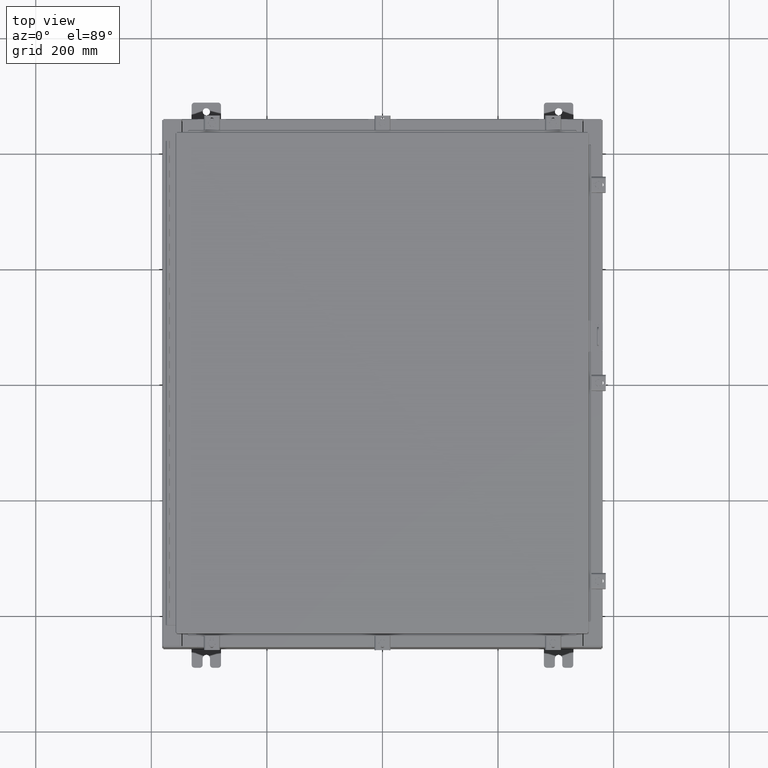
[diagram: clean part render]
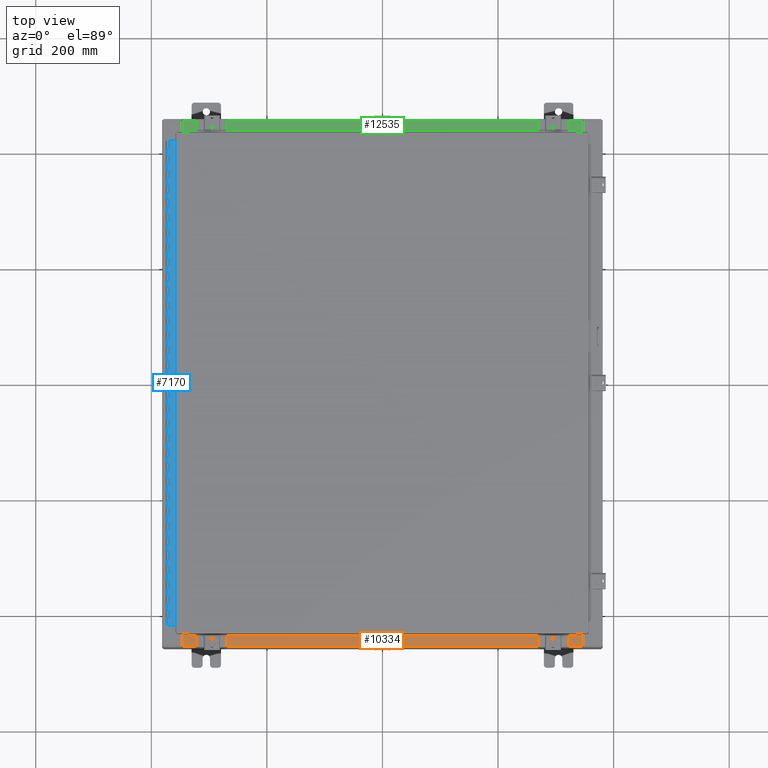
[diagram: same view with three faces highlighted in distinct colors, each labeled with its STEP entity id]
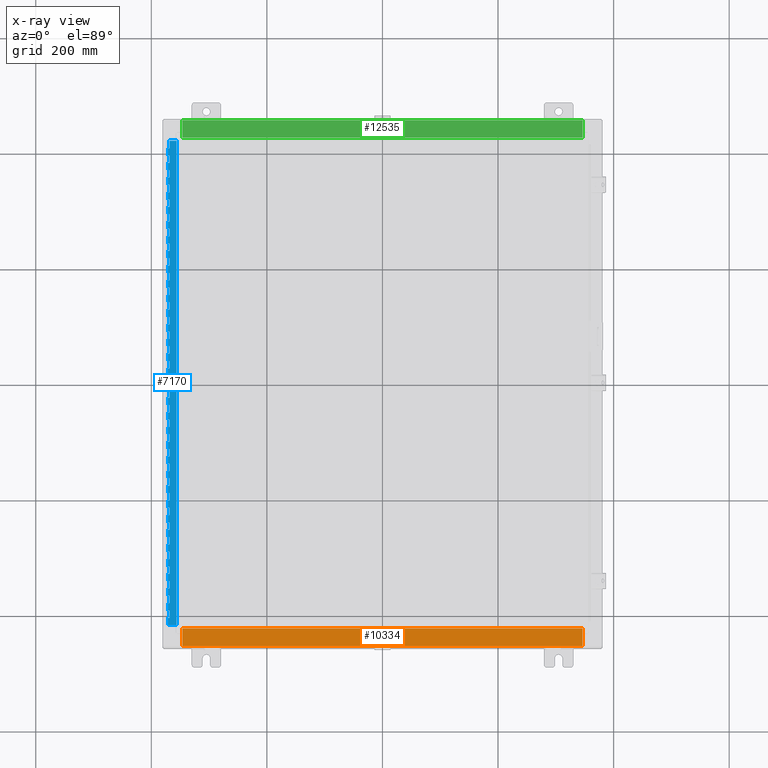
[diagram: x-ray of the same camera — body ghosted, the three highlighted faces saturated]
A machine part, top view with three faces highlighted in distinct colors.
The next image is the same camera in x-ray (body ghosted, the three faces saturated) — at least one of them is partly hidden behind the body in this view.
Their STEP definitions:

[orange] entity #10334 — the highlighted planar face has unit normal (-0, -0, 1).
#1409 = DIRECTION ( 'NONE',  ( 3.225867722578196700E-016, 1.000000000000000000, -3.767692204910442100E-015 ) ) ;
#1521 = AXIS2_PLACEMENT_3D ( 'NONE', #34026, #10554, #34175 ) ;
#2787 = CARTESIAN_POINT ( 'NONE',  ( 3.966755195218862200E-015, -0.08770000000000026400, 4.000000000000000900 ) ) ;
#3117 = VERTEX_POINT ( 'NONE', #33317 ) ;
#4059 = VECTOR ( 'NONE', #41303, 39.37007874015748100 ) ;
#6917 = EDGE_CURVE ( 'NONE', #3117, #12025, #22049, .T. ) ;
#7495 = CARTESIAN_POINT ( 'NONE',  ( -13.63719999999999800, -1.287299999999999200, 3.999999999999991600 ) ) ;
#8408 = LINE ( 'NONE', #31684, #34339 ) ;
#10334 = ADVANCED_FACE ( 'NONE', ( #10653 ), #30778, .T. ) ;
#10554 = DIRECTION ( 'NONE',  ( 9.992007221626408900E-016, 3.767692204910442100E-015, 1.000000000000000000 ) ) ;
#10653 = FACE_OUTER_BOUND ( 'NONE', #15027, .T. ) ;
#12025 = VERTEX_POINT ( 'NONE', #19274 ) ;
#12988 = DIRECTION ( 'NONE',  ( -1.000000000000000000, -3.025544489534480100E-016, -9.992007221626408900E-016 ) ) ;
#13461 = ORIENTED_EDGE ( 'NONE', *, *, #23507, .F. ) ;
#15027 = EDGE_LOOP ( 'NONE', ( #13461, #18949, #27291, #17702 ) ) ;
#15316 = VERTEX_POINT ( 'NONE', #7495 ) ;
#16535 = LINE ( 'NONE', #21759, #32331 ) ;
#17702 = ORIENTED_EDGE ( 'NONE', *, *, #40153, .T. ) ;
#18325 = EDGE_CURVE ( 'NONE', #12025, #15316, #16535, .T. ) ;
#18949 = ORIENTED_EDGE ( 'NONE', *, *, #18325, .F. ) ;
#19274 = CARTESIAN_POINT ( 'NONE',  ( 13.63720000000000400, -1.287299999999999200, 4.000000000000017800 ) ) ;
#21759 = CARTESIAN_POINT ( 'NONE',  ( 13.63720000000000400, -1.287299999999999200, 4.000000000000016000 ) ) ;
#22049 = LINE ( 'NONE', #24512, #4059 ) ;
#23507 = EDGE_CURVE ( 'NONE', #15316, #33270, #8408, .T. ) ;
#24512 = CARTESIAN_POINT ( 'NONE',  ( 13.63720000000000400, -1.300299999999999300, 4.000000000000017800 ) ) ;
#24801 = LINE ( 'NONE', #2787, #42711 ) ;
#25126 = DIRECTION ( 'NONE',  ( -1.000000000000000000, -3.225867722578232700E-016, -9.992007221626408900E-016 ) ) ;
#27291 = ORIENTED_EDGE ( 'NONE', *, *, #6917, .F. ) ;
#30778 = PLANE ( 'NONE',  #1521 ) ;
#31684 = CARTESIAN_POINT ( 'NONE',  ( -13.63719999999999800, -0.07470000000000015500, 3.999999999999987600 ) ) ;
#32331 = VECTOR ( 'NONE', #25126, 39.37007874015748100 ) ;
#33270 = VERTEX_POINT ( 'NONE', #36493 ) ;
#33317 = CARTESIAN_POINT ( 'NONE',  ( 13.63720000000000400, -0.08770000000000026400, 4.000000000000013300 ) ) ;
#34026 = CARTESIAN_POINT ( 'NONE',  ( 3.996802889197674900E-015, 1.311287036958846300E-014, 3.999999999999999600 ) ) ;
#34175 = DIRECTION ( 'NONE',  ( -3.225867722578196200E-016, -1.000000000000000000, 3.767692204910442100E-015 ) ) ;
#34339 = VECTOR ( 'NONE', #1409, 39.37007874015748100 ) ;
#36493 = CARTESIAN_POINT ( 'NONE',  ( -13.63719999999999800, -0.08770000000000026400, 3.999999999999987600 ) ) ;
#40153 = EDGE_CURVE ( 'NONE', #3117, #33270, #24801, .T. ) ;
#41303 = DIRECTION ( 'NONE',  ( -3.225867722578196700E-016, -1.000000000000000000, 3.767692204910442100E-015 ) ) ;
#42711 = VECTOR ( 'NONE', #12988, 39.37007874015748100 ) ;

[blue] entity #7170 — the highlighted planar face has unit normal (-0, -0, 1).
#23 = CARTESIAN_POINT ( 'NONE',  ( -0.6870000000000041600, 0.8005000000000023200, -8.000000000000001800 ) ) ;
#84 = ORIENTED_EDGE ( 'NONE', *, *, #8705, .T. ) ;
#146 = LINE ( 'NONE', #5603, #36023 ) ;
#155 = EDGE_CURVE ( 'NONE', #4921, #42041, #41404, .T. ) ;
#171 = EDGE_CURVE ( 'NONE', #7266, #37478, #40357, .T. ) ;
#267 = VERTEX_POINT ( 'NONE', #17944 ) ;
#365 = ORIENTED_EDGE ( 'NONE', *, *, #39385, .T. ) ;
#439 = EDGE_CURVE ( 'NONE', #28554, #14834, #31860, .T. ) ;
#442 = EDGE_CURVE ( 'NONE', #8170, #12367, #22935, .T. ) ;
#451 = CARTESIAN_POINT ( 'NONE',  ( -0.6869999999999998300, 0.5505000000000055400, -15.50000000000000000 ) ) ;
#533 = CARTESIAN_POINT ( 'NONE',  ( -0.6870000000000041600, 0.8005000000000132000, -21.50000000000000400 ) ) ;
#652 = LINE ( 'NONE', #23785, #35476 ) ;
#655 = CARTESIAN_POINT ( 'NONE',  ( -0.6870000000000019400, 0.6755000000000007700, -33.00000000000000000 ) ) ;
#670 = ORIENTED_EDGE ( 'NONE', *, *, #27758, .F. ) ;
#671 = DIRECTION ( 'NONE',  ( -3.389037039080725100E-015, -1.000000000000000000, -1.896294504549992300E-027 ) ) ;
#739 = VECTOR ( 'NONE', #5718, 39.37007874015748100 ) ;
#741 = CARTESIAN_POINT ( 'NONE',  ( -0.6870000000000009400, 0.5505000000000120900, -24.50000000000000000 ) ) ;
#806 = CARTESIAN_POINT ( 'NONE',  ( -0.6870000000000019400, 0.6755000000000007700, -33.00000000000000000 ) ) ;
#820 = CARTESIAN_POINT ( 'NONE',  ( -0.6869999999999998300, 0.5505000000000055400, -16.00000000000000000 ) ) ;
#824 = ORIENTED_EDGE ( 'NONE', *, *, #9912, .T. ) ;
#910 = VERTEX_POINT ( 'NONE', #43611 ) ;
#920 = VECTOR ( 'NONE', #42063, 39.37007874015748100 ) ;
#923 = EDGE_CURVE ( 'NONE', #24552, #21977, #38656, .T. ) ;
#948 = VERTEX_POINT ( 'NONE', #33738 ) ;
#1029 = CARTESIAN_POINT ( 'NONE',  ( -0.6870000000000041600, 0.8005000000000001000, -0.9999999999999992200 ) ) ;
#1053 = VECTOR ( 'NONE', #30129, 39.37007874015748100 ) ;
#1057 = EDGE_CURVE ( 'NONE', #43181, #34247, #24439, .T. ) ;
#1071 = CARTESIAN_POINT ( 'NONE',  ( -0.6870000000000063800, 0.07550000000001207100, 0.0000000000000000000 ) ) ;
#1122 = CARTESIAN_POINT ( 'NONE',  ( -0.6870000000000030500, 0.8005000000000132000, -31.50000000000000400 ) ) ;
#1153 = LINE ( 'NONE', #29729, #9038 ) ;
#1349 = CARTESIAN_POINT ( 'NONE',  ( -0.6870000000000041600, 0.5505000000000011000, -33.00000000000000000 ) ) ;
#1440 = VECTOR ( 'NONE', #26957, 39.37007874015748100 ) ;
#1491 = LINE ( 'NONE', #41407, #9393 ) ;
#1511 = CARTESIAN_POINT ( 'NONE',  ( -0.6870000000000041600, 0.6755000000000007700, -2.500000000000000000 ) ) ;
#1516 = VERTEX_POINT ( 'NONE', #37070 ) ;
#1555 = CARTESIAN_POINT ( 'NONE',  ( -0.6870000000000063800, 0.07549999999999895700, -33.00000000000000000 ) ) ;
#1565 = DIRECTION ( 'NONE',  ( 5.708493333018705000E-027, -1.896227254882092100E-027, -1.000000000000000000 ) ) ;
#1571 = LINE ( 'NONE', #8842, #17483 ) ;
#1584 = EDGE_CURVE ( 'NONE', #31465, #19210, #41264, .T. ) ;
#1613 = LINE ( 'NONE', #37307, #9526 ) ;
#1626 = EDGE_CURVE ( 'NONE', #20956, #18707, #30172, .T. ) ;
#1649 = CARTESIAN_POINT ( 'NONE',  ( -0.6870000000000041600, 0.5505000000000011000, -5.499999999999997300 ) ) ;
#1720 = ORIENTED_EDGE ( 'NONE', *, *, #33020, .T. ) ;
#1789 = CARTESIAN_POINT ( 'NONE',  ( -0.6869999999999976100, 0.8005000000000132000, -28.50000000000000000 ) ) ;
#1816 = VERTEX_POINT ( 'NONE', #42308 ) ;
#1818 = ORIENTED_EDGE ( 'NONE', *, *, #28283, .T. ) ;
#1928 = EDGE_CURVE ( 'NONE', #19846, #40571, #35406, .T. ) ;
#1937 = CARTESIAN_POINT ( 'NONE',  ( -0.6870000000000041600, 0.6755000000000138700, -26.50000000000000400 ) ) ;
#2060 = DIRECTION ( 'NONE',  ( -5.708493333018705000E-027, 1.896227254882092100E-027, 1.000000000000000000 ) ) ;
#2107 = EDGE_CURVE ( 'NONE', #31583, #35325, #29055, .T. ) ;
#2246 = LINE ( 'NONE', #2432, #37147 ) ;
#2248 = LINE ( 'NONE', #6339, #10197 ) ;
#2254 = ORIENTED_EDGE ( 'NONE', *, *, #18471, .T. ) ;
#2261 = EDGE_CURVE ( 'NONE', #9893, #41801, #39606, .T. ) ;
#2270 = CARTESIAN_POINT ( 'NONE',  ( -0.6870000000000041600, 0.8005000000000132000, -24.99999999999999600 ) ) ;
#2318 = LINE ( 'NONE', #15260, #11321 ) ;
#2324 = EDGE_CURVE ( 'NONE', #34627, #15118, #11596, .T. ) ;
#2354 = ORIENTED_EDGE ( 'NONE', *, *, #1584, .F. ) ;
#2395 = ORIENTED_EDGE ( 'NONE', *, *, #7023, .F. ) ;
#2399 = VERTEX_POINT ( 'NONE', #26323 ) ;
#2424 = CARTESIAN_POINT ( 'NONE',  ( -0.6870000000000041600, 0.6755000000000116500, -17.99999999999999600 ) ) ;
#2432 = CARTESIAN_POINT ( 'NONE',  ( -0.6870000000000019400, 0.6755000000000007700, -33.00000000000000000 ) ) ;
#2631 = CARTESIAN_POINT ( 'NONE',  ( -0.6870000000000019400, 0.6755000000000007700, -33.00000000000000000 ) ) ;
#2695 = CARTESIAN_POINT ( 'NONE',  ( -0.6870000000000019400, 0.6755000000000007700, -33.00000000000000000 ) ) ;
#2755 = LINE ( 'NONE', #1029, #28656 ) ;
#2780 = VERTEX_POINT ( 'NONE', #38238 ) ;
#2807 = ORIENTED_EDGE ( 'NONE', *, *, #15666, .F. ) ;
#2818 = DIRECTION ( 'NONE',  ( -5.708493333018705000E-027, 1.896227254882092100E-027, 1.000000000000000000 ) ) ;
#2829 = LINE ( 'NONE', #37081, #38747 ) ;
#2839 = VECTOR ( 'NONE', #23252, 39.37007874015748100 ) ;
#2848 = VECTOR ( 'NONE', #20293, 39.37007874015748100 ) ;
#2876 = VERTEX_POINT ( 'NONE', #15196 ) ;
#2899 = VECTOR ( 'NONE', #21091, 39.37007874015748100 ) ;
#2931 = ORIENTED_EDGE ( 'NONE', *, *, #26709, .F. ) ;
#2947 = CARTESIAN_POINT ( 'NONE',  ( -0.6870000000000041600, 0.6755000000000116500, -22.50000000000000000 ) ) ;
#2948 = CARTESIAN_POINT ( 'NONE',  ( -0.6870000000000052700, 0.6755000000000007700, -1.999999999999998400 ) ) ;
#2970 = LINE ( 'NONE', #29904, #28856 ) ;
#3023 = CARTESIAN_POINT ( 'NONE',  ( -0.6870000000000052700, 0.5505000000000120900, -22.00000000000000000 ) ) ;
#3060 = EDGE_CURVE ( 'NONE', #24552, #4574, #35826, .T. ) ;
#3071 = DIRECTION ( 'NONE',  ( -5.708493333018705000E-027, 1.896227254882092100E-027, 1.000000000000000000 ) ) ;
#3132 = EDGE_CURVE ( 'NONE', #23576, #17018, #24777, .T. ) ;
#3142 = DIRECTION ( 'NONE',  ( 3.389037039080725100E-015, 1.000000000000000000, 1.896294504549992300E-027 ) ) ;
#3187 = DIRECTION ( 'NONE',  ( 3.389037039080725100E-015, 1.000000000000000000, 1.896294504549992300E-027 ) ) ;
#3225 = DIRECTION ( 'NONE',  ( -3.389037039080725100E-015, -1.000000000000000000, -1.896294504549992300E-027 ) ) ;
#3265 = CARTESIAN_POINT ( 'NONE',  ( -0.6870000000000041600, 0.6755000000000007700, -4.500000000000002700 ) ) ;
#3311 = CARTESIAN_POINT ( 'NONE',  ( -0.6870000000000052700, 0.5505000000000033200, -12.50000000000000000 ) ) ;
#3312 = EDGE_CURVE ( 'NONE', #43181, #17213, #34259, .T. ) ;
#3412 = VECTOR ( 'NONE', #36835, 39.37007874015748100 ) ;
#3604 = CARTESIAN_POINT ( 'NONE',  ( -0.6869999999999987200, 0.5505000000000011000, -11.50000000000000200 ) ) ;
#3611 = VERTEX_POINT ( 'NONE', #32218 ) ;
#3617 = LINE ( 'NONE', #20983, #10495 ) ;
#3644 = DIRECTION ( 'NONE',  ( 5.708493333018705000E-027, -1.896227254882092100E-027, -1.000000000000000000 ) ) ;
#3647 = CARTESIAN_POINT ( 'NONE',  ( -0.6869999999999976100, 0.8005000000000044300, -14.49999999999999800 ) ) ;
#3663 = VECTOR ( 'NONE', #8102, 39.37007874015748100 ) ;
#3733 = DIRECTION ( 'NONE',  ( -3.389037039080725100E-015, -1.000000000000000000, -1.896294504549992300E-027 ) ) ;
#3736 = CARTESIAN_POINT ( 'NONE',  ( -0.6870000000000019400, 0.6755000000000007700, -33.00000000000000000 ) ) ;
#3791 = ORIENTED_EDGE ( 'NONE', *, *, #24603, .F. ) ;
#3866 = CARTESIAN_POINT ( 'NONE',  ( -0.6870000000000052700, 0.6755000000000116500, -16.50000000000000000 ) ) ;
#3992 = VERTEX_POINT ( 'NONE', #27649 ) ;
#3995 = LINE ( 'NONE', #533, #5018 ) ;
#4024 = CARTESIAN_POINT ( 'NONE',  ( -0.6870000000000052700, 0.5505000000000120900, -26.50000000000000400 ) ) ;
#4070 = CARTESIAN_POINT ( 'NONE',  ( -0.6869999999999987200, 0.8005000000000132000, -18.50000000000000000 ) ) ;
#4117 = CARTESIAN_POINT ( 'NONE',  ( -0.6870000000000041600, 0.6755000000000116500, -21.00000000000000000 ) ) ;
#4139 = ORIENTED_EDGE ( 'NONE', *, *, #34151, .F. ) ;
#4212 = DIRECTION ( 'NONE',  ( 3.389037039080725100E-015, 1.000000000000000000, 1.896294504549992300E-027 ) ) ;
#4231 = ORIENTED_EDGE ( 'NONE', *, *, #14480, .T. ) ;
#4251 = CARTESIAN_POINT ( 'NONE',  ( -0.6870000000000019400, 0.5505000000000011000, -10.50000000000000200 ) ) ;
#4284 = CARTESIAN_POINT ( 'NONE',  ( -0.6870000000000041600, 0.6755000000000007700, -3.499999999999999100 ) ) ;
#4379 = EDGE_CURVE ( 'NONE', #16849, #17576, #26933, .T. ) ;
#4530 = CARTESIAN_POINT ( 'NONE',  ( -0.6870000000000041600, 0.5505000000000120900, -28.50000000000000000 ) ) ;
#4574 = VERTEX_POINT ( 'NONE', #451 ) ;
#4603 = ORIENTED_EDGE ( 'NONE', *, *, #42095, .F. ) ;
#4617 = VERTEX_POINT ( 'NONE', #4117 ) ;
#4650 = VERTEX_POINT ( 'NONE', #4251 ) ;
#4697 = VECTOR ( 'NONE', #18308, 39.37007874015748100 ) ;
#4813 = CARTESIAN_POINT ( 'NONE',  ( -0.6870000000000041600, 0.6755000000000007700, -8.000000000000001800 ) ) ;
#4839 = CARTESIAN_POINT ( 'NONE',  ( -0.6870000000000041600, 0.6755000000000007700, -7.500000000000000000 ) ) ;
#4850 = VERTEX_POINT ( 'NONE', #29534 ) ;
#4863 = VECTOR ( 'NONE', #1565, 39.37007874015748100 ) ;
#4921 = VERTEX_POINT ( 'NONE', #2947 ) ;
#4947 = LINE ( 'NONE', #16735, #29799 ) ;
#5018 = VECTOR ( 'NONE', #24184, 39.37007874015748100 ) ;
#5085 = VECTOR ( 'NONE', #25630, 39.37007874015748100 ) ;
#5114 = VECTOR ( 'NONE', #29198, 39.37007874015748100 ) ;
#5118 = ORIENTED_EDGE ( 'NONE', *, *, #38957, .F. ) ;
#5216 = EDGE_CURVE ( 'NONE', #23576, #39473, #39578, .T. ) ;
#5305 = ORIENTED_EDGE ( 'NONE', *, *, #10406, .T. ) ;
#5353 = EDGE_CURVE ( 'NONE', #38322, #19278, #43250, .T. ) ;
#5380 = LINE ( 'NONE', #7961, #22344 ) ;
#5452 = CARTESIAN_POINT ( 'NONE',  ( -0.6870000000000041600, 0.8005000000000132000, -24.50000000000000000 ) ) ;
#5525 = CARTESIAN_POINT ( 'NONE',  ( -0.6869999999999998300, 0.8005000000000132000, -17.99999999999999600 ) ) ;
#5550 = VERTEX_POINT ( 'NONE', #43479 ) ;
#5552 = ORIENTED_EDGE ( 'NONE', *, *, #12943, .F. ) ;
#5563 = VERTEX_POINT ( 'NONE', #33607 ) ;
#5603 = CARTESIAN_POINT ( 'NONE',  ( -0.6870000000000019400, 0.6755000000000007700, -33.00000000000000000 ) ) ;
#5634 = EDGE_CURVE ( 'NONE', #7891, #24707, #24794, .T. ) ;
#5718 = DIRECTION ( 'NONE',  ( 3.389037039080725100E-015, 1.000000000000000000, 1.896294504549992300E-027 ) ) ;
#5764 = CARTESIAN_POINT ( 'NONE',  ( -0.6870000000000019400, 0.6755000000000007700, -33.00000000000000000 ) ) ;
#5767 = CARTESIAN_POINT ( 'NONE',  ( -0.6870000000000041600, 0.5505000000000011000, -10.00000000000000000 ) ) ;
#5784 = EDGE_CURVE ( 'NONE', #13666, #18422, #1491, .T. ) ;
#5915 = CARTESIAN_POINT ( 'NONE',  ( -0.6870000000000052700, 0.5505000000000120900, -27.50000000000000000 ) ) ;
#5944 = VERTEX_POINT ( 'NONE', #8736 ) ;
#6025 = CARTESIAN_POINT ( 'NONE',  ( -0.6869999999999976100, 0.8005000000000001000, -32.50000000000000000 ) ) ;
#6089 = DIRECTION ( 'NONE',  ( 5.708493333018705000E-027, -1.896227254882092100E-027, -1.000000000000000000 ) ) ;
#6090 = ORIENTED_EDGE ( 'NONE', *, *, #1057, .T. ) ;
#6158 = VECTOR ( 'NONE', #42440, 39.37007874015748100 ) ;
#6199 = VERTEX_POINT ( 'NONE', #9941 ) ;
#6275 = DIRECTION ( 'NONE',  ( 3.389037039080725100E-015, 1.000000000000000000, 1.896294504549992300E-027 ) ) ;
#6308 = EDGE_CURVE ( 'NONE', #19210, #2780, #7260, .T. ) ;
#6334 = ORIENTED_EDGE ( 'NONE', *, *, #28508, .F. ) ;
#6339 = CARTESIAN_POINT ( 'NONE',  ( -0.6870000000000041600, 0.8005000000000132000, -28.99999999999999600 ) ) ;
#6355 = CARTESIAN_POINT ( 'NONE',  ( -0.6870000000000041600, 0.8005000000000001000, -5.999999999999999100 ) ) ;
#6410 = VECTOR ( 'NONE', #37711, 39.37007874015748100 ) ;
#6420 = VECTOR ( 'NONE', #10536, 39.37007874015748100 ) ;
#6482 = EDGE_CURVE ( 'NONE', #6775, #17018, #9892, .T. ) ;
#6546 = CARTESIAN_POINT ( 'NONE',  ( -0.6870000000000019400, 0.6755000000000007700, -33.00000000000000000 ) ) ;
#6559 = VECTOR ( 'NONE', #23136, 39.37007874015748100 ) ;
#6730 = VECTOR ( 'NONE', #32979, 39.37007874015748100 ) ;
#6732 = CARTESIAN_POINT ( 'NONE',  ( -0.6870000000000019400, 0.5505000000000120900, -19.50000000000000000 ) ) ;
#6775 = VERTEX_POINT ( 'NONE', #16544 ) ;
#6827 = CARTESIAN_POINT ( 'NONE',  ( -0.6870000000000041600, 0.6755000000000138700, -27.00000000000000000 ) ) ;
#6835 = VECTOR ( 'NONE', #38492, 39.37007874015748100 ) ;
#6889 = LINE ( 'NONE', #41721, #40724 ) ;
#6976 = VERTEX_POINT ( 'NONE', #4530 ) ;
#7023 = EDGE_CURVE ( 'NONE', #19940, #910, #34689, .T. ) ;
#7034 = ORIENTED_EDGE ( 'NONE', *, *, #29541, .F. ) ;
#7035 = CARTESIAN_POINT ( 'NONE',  ( -0.6869999999999987200, 0.6755000000000116500, -14.99999999999999800 ) ) ;
#7049 = VERTEX_POINT ( 'NONE', #21839 ) ;
#7077 = VECTOR ( 'NONE', #39780, 39.37007874015748100 ) ;
#7084 = ORIENTED_EDGE ( 'NONE', *, *, #3060, .F. ) ;
#7114 = VERTEX_POINT ( 'NONE', #11888 ) ;
#7128 = VECTOR ( 'NONE', #21155, 39.37007874015748100 ) ;
#7170 = ADVANCED_FACE ( 'NONE', ( #39407 ), #18867, .T. ) ;
#7190 = CARTESIAN_POINT ( 'NONE',  ( -0.6870000000000041600, 0.8005000000000001000, -1.999999999999998400 ) ) ;
#7203 = VECTOR ( 'NONE', #8055, 39.37007874015748100 ) ;
#7260 = LINE ( 'NONE', #4024, #43165 ) ;
#7266 = VERTEX_POINT ( 'NONE', #32996 ) ;
#7321 = ORIENTED_EDGE ( 'NONE', *, *, #42713, .F. ) ;
#7340 = VECTOR ( 'NONE', #35821, 39.37007874015748100 ) ;
#7431 = ORIENTED_EDGE ( 'NONE', *, *, #32587, .F. ) ;
#7439 = CARTESIAN_POINT ( 'NONE',  ( -0.6869999999999998300, 0.8005000000000023200, -8.500000000000000000 ) ) ;
#7444 = VECTOR ( 'NONE', #31829, 39.37007874015748100 ) ;
#7508 = LINE ( 'NONE', #15034, #34475 ) ;
#7605 = ORIENTED_EDGE ( 'NONE', *, *, #26998, .F. ) ;
#7749 = DIRECTION ( 'NONE',  ( 5.708493333018705000E-027, -1.896227254882092100E-027, -1.000000000000000000 ) ) ;
#7826 = DIRECTION ( 'NONE',  ( -3.389037039080725100E-015, -1.000000000000000000, -1.896294504549992300E-027 ) ) ;
#7866 = VECTOR ( 'NONE', #33064, 39.37007874015748100 ) ;
#7877 = CARTESIAN_POINT ( 'NONE',  ( -0.6870000000000019400, 0.6755000000000007700, -33.00000000000000000 ) ) ;
#7891 = VERTEX_POINT ( 'NONE', #42373 ) ;
#7926 = CARTESIAN_POINT ( 'NONE',  ( -0.6870000000000052700, 0.5505000000000011000, -3.000000000000001800 ) ) ;
#7949 = ORIENTED_EDGE ( 'NONE', *, *, #28447, .F. ) ;
#7958 = CARTESIAN_POINT ( 'NONE',  ( -0.6870000000000030500, 0.8005000000000001000, -3.499999999999999100 ) ) ;
#7961 = CARTESIAN_POINT ( 'NONE',  ( -0.6870000000000030500, 0.8005000000000044300, -12.99999999999999800 ) ) ;
#8011 = LINE ( 'NONE', #6732, #22847 ) ;
#8050 = ORIENTED_EDGE ( 'NONE', *, *, #36206, .F. ) ;
#8055 = DIRECTION ( 'NONE',  ( -5.708493333018705000E-027, 1.896227254882092100E-027, 1.000000000000000000 ) ) ;
#8056 = ORIENTED_EDGE ( 'NONE', *, *, #43599, .F. ) ;
#8102 = DIRECTION ( 'NONE',  ( 5.708493333018705000E-027, -1.896227254882092100E-027, -1.000000000000000000 ) ) ;
#8156 = EDGE_CURVE ( 'NONE', #43052, #36161, #2829, .T. ) ;
#8170 = VERTEX_POINT ( 'NONE', #3265 ) ;
#8219 = VECTOR ( 'NONE', #20270, 39.37007874015748100 ) ;
#8243 = CARTESIAN_POINT ( 'NONE',  ( -0.6870000000000041600, 0.8005000000000132000, -21.00000000000000000 ) ) ;
#8248 = VERTEX_POINT ( 'NONE', #40912 ) ;
#8277 = ORIENTED_EDGE ( 'NONE', *, *, #37927, .F. ) ;
#8294 = CARTESIAN_POINT ( 'NONE',  ( -0.6869999999999976100, 0.8005000000000132000, -23.99999999999999600 ) ) ;
#8304 = DIRECTION ( 'NONE',  ( -5.708493333018705000E-027, 1.896227254882092100E-027, 1.000000000000000000 ) ) ;
#8359 = ORIENTED_EDGE ( 'NONE', *, *, #12724, .F. ) ;
#8451 = VECTOR ( 'NONE', #37290, 39.37007874015748100 ) ;
#8521 = AXIS2_PLACEMENT_3D ( 'NONE', #12174, #42589, #22410 ) ;
#8593 = CARTESIAN_POINT ( 'NONE',  ( -0.6870000000000041600, 0.8005000000000132000, -20.00000000000000000 ) ) ;
#8662 = VECTOR ( 'NONE', #22701, 39.37007874015748100 ) ;
#8666 = ORIENTED_EDGE ( 'NONE', *, *, #43388, .F. ) ;
#8705 = EDGE_CURVE ( 'NONE', #12576, #31119, #23423, .T. ) ;
#8736 = CARTESIAN_POINT ( 'NONE',  ( -0.6870000000000052700, 0.5505000000000120900, -27.50000000000000000 ) ) ;
#8836 = CARTESIAN_POINT ( 'NONE',  ( -0.6870000000000009400, 0.6755000000000138700, -0.4999999999999973900 ) ) ;
#8842 = CARTESIAN_POINT ( 'NONE',  ( -0.6870000000000019400, 0.6755000000000007700, -33.00000000000000000 ) ) ;
#8905 = VECTOR ( 'NONE', #36445, 39.37007874015748100 ) ;
#8906 = ORIENTED_EDGE ( 'NONE', *, *, #36544, .F. ) ;
#8994 = CARTESIAN_POINT ( 'NONE',  ( -0.6870000000000019400, 0.6755000000000007700, -33.00000000000000000 ) ) ;
#9028 = VECTOR ( 'NONE', #15747, 39.37007874015748100 ) ;
#9038 = VECTOR ( 'NONE', #6089, 39.37007874015748100 ) ;
#9052 = DIRECTION ( 'NONE',  ( 3.389037039080725100E-015, 1.000000000000000000, 1.896294504549992300E-027 ) ) ;
#9082 = ORIENTED_EDGE ( 'NONE', *, *, #42452, .F. ) ;
#9156 = DIRECTION ( 'NONE',  ( 5.708493333018705000E-027, -1.896227254882092100E-027, -1.000000000000000000 ) ) ;
#9215 = VECTOR ( 'NONE', #28147, 39.37007874015748100 ) ;
#9239 = VERTEX_POINT ( 'NONE', #3023 ) ;
#9344 = CARTESIAN_POINT ( 'NONE',  ( -0.6870000000000052700, 0.5505000000000011000, -8.500000000000000000 ) ) ;
#9356 = DIRECTION ( 'NONE',  ( 3.389037039080725100E-015, 1.000000000000000000, 1.896294504549992300E-027 ) ) ;
#9393 = VECTOR ( 'NONE', #7749, 39.37007874015748100 ) ;
#9394 = CARTESIAN_POINT ( 'NONE',  ( -0.6870000000000041600, 0.8005000000000132000, -15.50000000000000000 ) ) ;
#9411 = DIRECTION ( 'NONE',  ( 3.389037039080725100E-015, 1.000000000000000000, 1.896294504549992300E-027 ) ) ;
#9434 = EDGE_CURVE ( 'NONE', #11439, #34171, #16555, .T. ) ;
#9523 = CARTESIAN_POINT ( 'NONE',  ( -0.6869999999999976100, 0.8005000000000132000, -23.50000000000000000 ) ) ;
#9526 = VECTOR ( 'NONE', #3644, 39.37007874015748100 ) ;
#9579 = EDGE_CURVE ( 'NONE', #39186, #26751, #37133, .T. ) ;
#9599 = DIRECTION ( 'NONE',  ( -3.389037039080725100E-015, -1.000000000000000000, -1.896294504549992300E-027 ) ) ;
#9671 = CARTESIAN_POINT ( 'NONE',  ( -0.6870000000000052700, 0.5505000000000011000, -3.499999999999999100 ) ) ;
#9686 = DIRECTION ( 'NONE',  ( -5.708493333018705000E-027, 1.896227254882092100E-027, 1.000000000000000000 ) ) ;
#9735 = LINE ( 'NONE', #25922, #8662 ) ;
#9744 = CARTESIAN_POINT ( 'NONE',  ( -0.6869999999999987200, 0.5505000000000011000, -2.500000000000000000 ) ) ;
#9765 = ORIENTED_EDGE ( 'NONE', *, *, #171, .F. ) ;
#9774 = VERTEX_POINT ( 'NONE', #16446 ) ;
#9892 = LINE ( 'NONE', #38672, #920 ) ;
#9893 = VERTEX_POINT ( 'NONE', #17064 ) ;
#9912 = EDGE_CURVE ( 'NONE', #17862, #23526, #15415, .T. ) ;
#9941 = CARTESIAN_POINT ( 'NONE',  ( -0.6870000000000052700, 0.5505000000000120900, -31.50000000000000400 ) ) ;
#9962 = VECTOR ( 'NONE', #9686, 39.37007874015748100 ) ;
#9996 = ORIENTED_EDGE ( 'NONE', *, *, #30535, .F. ) ;
#10084 = LINE ( 'NONE', #1789, #20170 ) ;
#10113 = EDGE_CURVE ( 'NONE', #41801, #42374, #1153, .T. ) ;
#10120 = CARTESIAN_POINT ( 'NONE',  ( -0.6870000000000041600, 0.6755000000000051000, -12.50000000000000000 ) ) ;
#10197 = VECTOR ( 'NONE', #36769, 39.37007874015748100 ) ;
#10284 = VECTOR ( 'NONE', #30605, 39.37007874015748100 ) ;
#10311 = VECTOR ( 'NONE', #42375, 39.37007874015748100 ) ;
#10406 = EDGE_CURVE ( 'NONE', #12435, #33117, #17549, .T. ) ;
#10416 = CARTESIAN_POINT ( 'NONE',  ( -0.6870000000000041600, 0.8005000000000044300, -12.50000000000000000 ) ) ;
#10495 = VECTOR ( 'NONE', #27731, 39.37007874015748100 ) ;
#10536 = DIRECTION ( 'NONE',  ( -5.708493333018705000E-027, 1.896227254882092100E-027, 1.000000000000000000 ) ) ;
#10610 = DIRECTION ( 'NONE',  ( 3.389037039080725100E-015, 1.000000000000000000, 1.896294504549992300E-027 ) ) ;
#10668 = EDGE_CURVE ( 'NONE', #16849, #20956, #34931, .T. ) ;
#10997 = VERTEX_POINT ( 'NONE', #34400 ) ;
#11144 = LINE ( 'NONE', #15113, #37031 ) ;
#11253 = LINE ( 'NONE', #16569, #19184 ) ;
#11274 = CARTESIAN_POINT ( 'NONE',  ( -0.6870000000000041600, 0.6755000000000116500, -22.00000000000000000 ) ) ;
#11321 = VECTOR ( 'NONE', #22094, 39.37007874015748100 ) ;
#11333 = ORIENTED_EDGE ( 'NONE', *, *, #5216, .F. ) ;
#11373 = VERTEX_POINT ( 'NONE', #29491 ) ;
#11414 = VERTEX_POINT ( 'NONE', #26536 ) ;
#11439 = VERTEX_POINT ( 'NONE', #36715 ) ;
#11454 = ORIENTED_EDGE ( 'NONE', *, *, #28187, .F. ) ;
#11458 = ORIENTED_EDGE ( 'NONE', *, *, #38034, .F. ) ;
#11475 = CARTESIAN_POINT ( 'NONE',  ( -0.6870000000000096000, -0.6245000000000002800, -33.00000000000000000 ) ) ;
#11511 = CARTESIAN_POINT ( 'NONE',  ( -0.6870000000000041600, 0.6755000000000138700, -26.00000000000000000 ) ) ;
#11596 = LINE ( 'NONE', #8994, #30652 ) ;
#11626 = EDGE_CURVE ( 'NONE', #948, #17478, #2970, .T. ) ;
#11801 = EDGE_CURVE ( 'NONE', #19319, #40558, #40485, .T. ) ;
#11857 = VECTOR ( 'NONE', #15416, 39.37007874015748100 ) ;
#11885 = CARTESIAN_POINT ( 'NONE',  ( -0.6870000000000052700, 0.6755000000000138700, -25.50000000000000400 ) ) ;
#11888 = CARTESIAN_POINT ( 'NONE',  ( -0.6870000000000052700, 0.6755000000000116500, -20.50000000000000400 ) ) ;
#11931 = VERTEX_POINT ( 'NONE', #42411 ) ;
#11961 = ORIENTED_EDGE ( 'NONE', *, *, #38519, .F. ) ;
#11992 = CARTESIAN_POINT ( 'NONE',  ( -0.6869999999999998300, 0.6755000000000051000, -10.50000000000000200 ) ) ;
#11994 = EDGE_CURVE ( 'NONE', #25592, #43105, #35175, .T. ) ;
#11995 = VERTEX_POINT ( 'NONE', #42708 ) ;
#12017 = VECTOR ( 'NONE', #42273, 39.37007874015748100 ) ;
#12072 = ORIENTED_EDGE ( 'NONE', *, *, #22385, .F. ) ;
#12095 = CARTESIAN_POINT ( 'NONE',  ( -0.6869999999999976100, 0.8005000000000001000, -4.500000000000002700 ) ) ;
#12156 = CARTESIAN_POINT ( 'NONE',  ( -0.6870000000000052700, 0.5505000000000055400, -14.00000000000000200 ) ) ;
#12174 = CARTESIAN_POINT ( 'NONE',  ( -0.6870000000000096000, -0.6245000000000002800, -33.00000000000000000 ) ) ;
#12359 = CARTESIAN_POINT ( 'NONE',  ( -0.6870000000000041600, 0.5505000000000011000, -5.000000000000000000 ) ) ;
#12361 = ORIENTED_EDGE ( 'NONE', *, *, #22524, .F. ) ;
#12362 = ORIENTED_EDGE ( 'NONE', *, *, #36777, .F. ) ;
#12367 = VERTEX_POINT ( 'NONE', #17946 ) ;
#12370 = VERTEX_POINT ( 'NONE', #1071 ) ;
#12407 = ORIENTED_EDGE ( 'NONE', *, *, #19800, .F. ) ;
#12435 = VERTEX_POINT ( 'NONE', #18368 ) ;
#12502 = ORIENTED_EDGE ( 'NONE', *, *, #5634, .F. ) ;
#12574 = CARTESIAN_POINT ( 'NONE',  ( -0.6869999999999987200, 0.5505000000000055400, -16.50000000000000000 ) ) ;
#12576 = VERTEX_POINT ( 'NONE', #8836 ) ;
#12614 = LINE ( 'NONE', #21603, #3663 ) ;
#12620 = CARTESIAN_POINT ( 'NONE',  ( -0.6870000000000041600, 0.8005000000000132000, -26.00000000000000000 ) ) ;
#12653 = VERTEX_POINT ( 'NONE', #22770 ) ;
#12724 = EDGE_CURVE ( 'NONE', #4650, #948, #13457, .T. ) ;
#12728 = DIRECTION ( 'NONE',  ( -5.708493333018705000E-027, 1.896227254882092100E-027, 1.000000000000000000 ) ) ;
#12746 = CARTESIAN_POINT ( 'NONE',  ( -0.6870000000000052700, 0.5505000000000011000, -4.500000000000002700 ) ) ;
#12759 = DIRECTION ( 'NONE',  ( -3.389037039080725100E-015, -1.000000000000000000, -1.896294504549992300E-027 ) ) ;
#12772 = DIRECTION ( 'NONE',  ( 5.708493333018705000E-027, -1.896227254882092100E-027, -1.000000000000000000 ) ) ;
#12776 = VERTEX_POINT ( 'NONE', #33667 ) ;
#12845 = EDGE_CURVE ( 'NONE', #12370, #31119, #20365, .T. ) ;
#12886 = LINE ( 'NONE', #26906, #2848 ) ;
#12893 = CARTESIAN_POINT ( 'NONE',  ( -0.6870000000000052700, 0.5505000000000011000, -7.500000000000000000 ) ) ;
#12904 = ORIENTED_EDGE ( 'NONE', *, *, #41242, .F. ) ;
#12924 = ORIENTED_EDGE ( 'NONE', *, *, #24625, .F. ) ;
#12943 = EDGE_CURVE ( 'NONE', #12367, #32133, #32959, .T. ) ;
#12944 = DIRECTION ( 'NONE',  ( -3.389037039080725100E-015, -1.000000000000000000, -1.896294504549992300E-027 ) ) ;
#12966 = LINE ( 'NONE', #8243, #37812 ) ;
#12974 = CARTESIAN_POINT ( 'NONE',  ( -0.6870000000000041600, 0.6755000000000051000, -11.50000000000000200 ) ) ;
#13005 = EDGE_CURVE ( 'NONE', #27436, #15332, #13981, .T. ) ;
#13072 = DIRECTION ( 'NONE',  ( -5.708493333018705000E-027, 1.896227254882092100E-027, 1.000000000000000000 ) ) ;
#13225 = CARTESIAN_POINT ( 'NONE',  ( -0.6870000000000019400, 0.5505000000000120900, -28.99999999999999600 ) ) ;
#13236 = CARTESIAN_POINT ( 'NONE',  ( -0.6869999999999987200, 0.6755000000000051000, -11.00000000000000000 ) ) ;
#13247 = EDGE_CURVE ( 'NONE', #29946, #37478, #29839, .T. ) ;
#13306 = VECTOR ( 'NONE', #27884, 39.37007874015748100 ) ;
#13457 = LINE ( 'NONE', #16551, #31407 ) ;
#13565 = LINE ( 'NONE', #6546, #23624 ) ;
#13576 = ORIENTED_EDGE ( 'NONE', *, *, #30185, .T. ) ;
#13666 = VERTEX_POINT ( 'NONE', #36475 ) ;
#13697 = EDGE_CURVE ( 'NONE', #23066, #43040, #34066, .T. ) ;
#13713 = LINE ( 'NONE', #7958, #39567 ) ;
#13748 = EDGE_CURVE ( 'NONE', #12576, #11414, #4947, .T. ) ;
#13750 = ORIENTED_EDGE ( 'NONE', *, *, #1928, .F. ) ;
#13775 = EDGE_CURVE ( 'NONE', #11414, #33101, #12886, .T. ) ;
#13790 = DIRECTION ( 'NONE',  ( -3.389037039080725100E-015, -1.000000000000000000, -1.896294504549992300E-027 ) ) ;
#13848 = VECTOR ( 'NONE', #21525, 39.37007874015748100 ) ;
#13901 = DIRECTION ( 'NONE',  ( -3.389037039080725100E-015, -1.000000000000000000, -1.896294504549992300E-027 ) ) ;
#13954 = ORIENTED_EDGE ( 'NONE', *, *, #442, .F. ) ;
#13976 = CARTESIAN_POINT ( 'NONE',  ( -0.6870000000000041600, 0.6755000000000073200, -13.50000000000000000 ) ) ;
#13978 = DIRECTION ( 'NONE',  ( -5.708493333018705000E-027, 1.896227254882092100E-027, 1.000000000000000000 ) ) ;
#13981 = LINE ( 'NONE', #19890, #38754 ) ;
#13997 = VECTOR ( 'NONE', #26602, 39.37007874015748100 ) ;
#14101 = LINE ( 'NONE', #28306, #7203 ) ;
#14124 = EDGE_CURVE ( 'NONE', #29361, #31448, #35067, .T. ) ;
#14219 = EDGE_CURVE ( 'NONE', #42041, #42001, #24217, .T. ) ;
#14252 = VECTOR ( 'NONE', #12759, 39.37007874015748100 ) ;
#14255 = CARTESIAN_POINT ( 'NONE',  ( -0.6869999999999987200, 0.6755000000000007700, -5.999999999999999100 ) ) ;
#14322 = CARTESIAN_POINT ( 'NONE',  ( -0.6870000000000052700, 0.5505000000000120900, -21.50000000000000400 ) ) ;
#14433 = VERTEX_POINT ( 'NONE', #42844 ) ;
#14471 = VECTOR ( 'NONE', #23998, 39.37007874015748100 ) ;
#14480 = EDGE_CURVE ( 'NONE', #9893, #5563, #15691, .T. ) ;
#14587 = VERTEX_POINT ( 'NONE', #6827 ) ;
#14590 = VECTOR ( 'NONE', #13978, 39.37007874015748100 ) ;
#14630 = CARTESIAN_POINT ( 'NONE',  ( -0.6870000000000041600, 0.8005000000000132000, -17.00000000000000000 ) ) ;
#14700 = LINE ( 'NONE', #43413, #41625 ) ;
#14834 = VERTEX_POINT ( 'NONE', #1349 ) ;
#14842 = CARTESIAN_POINT ( 'NONE',  ( -0.6869999999999987200, 0.5505000000000120900, -25.50000000000000400 ) ) ;
#14869 = CARTESIAN_POINT ( 'NONE',  ( -0.6870000000000041600, 0.8005000000000132000, -20.50000000000000400 ) ) ;
#14910 = CARTESIAN_POINT ( 'NONE',  ( -0.6870000000000019400, 0.6755000000000007700, -33.00000000000000000 ) ) ;
#14944 = VECTOR ( 'NONE', #27233, 39.37007874015748100 ) ;
#14966 = LINE ( 'NONE', #5915, #32919 ) ;
#14967 = VECTOR ( 'NONE', #18347, 39.37007874015748100 ) ;
#14978 = VECTOR ( 'NONE', #25370, 39.37007874015748100 ) ;
#15013 = ORIENTED_EDGE ( 'NONE', *, *, #38395, .F. ) ;
#15016 = DIRECTION ( 'NONE',  ( -3.389037039080725100E-015, -1.000000000000000000, -1.896294504549992300E-027 ) ) ;
#15022 = CARTESIAN_POINT ( 'NONE',  ( -0.6870000000000041600, 0.5505000000000120900, -18.50000000000000000 ) ) ;
#15034 = CARTESIAN_POINT ( 'NONE',  ( -0.6869999999999987200, 0.5505000000000011000, -1.500000000000000900 ) ) ;
#15113 = CARTESIAN_POINT ( 'NONE',  ( -0.6870000000000041600, 0.8005000000000132000, -30.50000000000000400 ) ) ;
#15118 = VERTEX_POINT ( 'NONE', #2948 ) ;
#15169 = CARTESIAN_POINT ( 'NONE',  ( -0.6869999999999987200, 0.5505000000000120900, -25.50000000000000400 ) ) ;
#15194 = EDGE_CURVE ( 'NONE', #23685, #40558, #33049, .T. ) ;
#15196 = CARTESIAN_POINT ( 'NONE',  ( -0.6870000000000019400, 0.5505000000000120900, -19.50000000000000000 ) ) ;
#15211 = ORIENTED_EDGE ( 'NONE', *, *, #17123, .F. ) ;
#15260 = CARTESIAN_POINT ( 'NONE',  ( -0.6869999999999976100, 0.8005000000000132000, -23.00000000000000000 ) ) ;
#15310 = DIRECTION ( 'NONE',  ( -3.389037039080725100E-015, -1.000000000000000000, -1.896294504549992300E-027 ) ) ;
#15332 = VERTEX_POINT ( 'NONE', #17744 ) ;
#15333 = DIRECTION ( 'NONE',  ( 5.708493333018705000E-027, -1.896227254882092100E-027, -1.000000000000000000 ) ) ;
#15351 = ORIENTED_EDGE ( 'NONE', *, *, #3312, .F. ) ;
#15378 = CARTESIAN_POINT ( 'NONE',  ( -0.6870000000000052700, 0.5505000000000011000, -7.500000000000000000 ) ) ;
#15380 = LINE ( 'NONE', #36354, #21258 ) ;
#15384 = ORIENTED_EDGE ( 'NONE', *, *, #23170, .F. ) ;
#15405 = CARTESIAN_POINT ( 'NONE',  ( -0.6870000000000041600, 0.6755000000000116500, -23.00000000000000000 ) ) ;
#15415 = LINE ( 'NONE', #3736, #6420 ) ;
#15416 = DIRECTION ( 'NONE',  ( -5.708493333018705000E-027, 1.896227254882092100E-027, 1.000000000000000000 ) ) ;
#15506 = CARTESIAN_POINT ( 'NONE',  ( -0.6869999999999987200, 0.5505000000000011000, -7.000000000000002700 ) ) ;
#15514 = VECTOR ( 'NONE', #13790, 39.37007874015748100 ) ;
#15528 = CARTESIAN_POINT ( 'NONE',  ( -0.6870000000000041600, 0.8005000000000132000, -29.50000000000000000 ) ) ;
#15538 = CARTESIAN_POINT ( 'NONE',  ( -0.6870000000000041600, 0.6755000000000138700, -29.99999999999999600 ) ) ;
#15551 = VERTEX_POINT ( 'NONE', #35822 ) ;
#15603 = VERTEX_POINT ( 'NONE', #19320 ) ;
#15631 = ORIENTED_EDGE ( 'NONE', *, *, #43097, .T. ) ;
#15650 = VERTEX_POINT ( 'NONE', #43039 ) ;
#15660 = DIRECTION ( 'NONE',  ( -5.708493333018705000E-027, 1.896227254882092100E-027, 1.000000000000000000 ) ) ;
#15666 = EDGE_CURVE ( 'NONE', #37898, #9239, #41985, .T. ) ;
#15691 = LINE ( 'NONE', #2695, #40534 ) ;
#15716 = DIRECTION ( 'NONE',  ( 5.708493333018705000E-027, -1.896227254882092100E-027, -1.000000000000000000 ) ) ;
#15747 = DIRECTION ( 'NONE',  ( -5.708493333018705000E-027, 1.896227254882092100E-027, 1.000000000000000000 ) ) ;
#15865 = EDGE_CURVE ( 'NONE', #11373, #14587, #34605, .T. ) ;
#15866 = CARTESIAN_POINT ( 'NONE',  ( -0.6870000000000052700, 0.5505000000000011000, -8.000000000000001800 ) ) ;
#15933 = CARTESIAN_POINT ( 'NONE',  ( -0.6870000000000052700, 0.5505000000000120900, -23.00000000000000000 ) ) ;
#16022 = EDGE_CURVE ( 'NONE', #2780, #14587, #37233, .T. ) ;
#16040 = DIRECTION ( 'NONE',  ( -5.708493333018705000E-027, 1.896227254882092100E-027, 1.000000000000000000 ) ) ;
#16160 = VERTEX_POINT ( 'NONE', #4284 ) ;
#16392 = CARTESIAN_POINT ( 'NONE',  ( -0.6870000000000041600, 0.5505000000000011000, -9.500000000000003600 ) ) ;
#16438 = VECTOR ( 'NONE', #40212, 39.37007874015748100 ) ;
#16446 = CARTESIAN_POINT ( 'NONE',  ( -0.6870000000000052700, 0.5505000000000055400, -17.00000000000000000 ) ) ;
#16544 = CARTESIAN_POINT ( 'NONE',  ( -0.6870000000000052700, 0.5505000000000011000, -9.000000000000001800 ) ) ;
#16551 = CARTESIAN_POINT ( 'NONE',  ( -0.6870000000000019400, 0.5505000000000011000, -10.50000000000000200 ) ) ;
#16555 = LINE ( 'NONE', #24177, #33419 ) ;
#16558 = VECTOR ( 'NONE', #3733, 39.37007874015748100 ) ;
#16569 = CARTESIAN_POINT ( 'NONE',  ( -0.6870000000000041600, 0.8005000000000044300, -11.99999999999999800 ) ) ;
#16616 = CARTESIAN_POINT ( 'NONE',  ( -0.6869999999999976100, 0.8005000000000001000, -5.000000000000000000 ) ) ;
#16622 = DIRECTION ( 'NONE',  ( -5.708493333018705000E-027, 1.896227254882092100E-027, 1.000000000000000000 ) ) ;
#16735 = CARTESIAN_POINT ( 'NONE',  ( -0.6869999999999976100, 0.8005000000000132000, -0.4999999999999973900 ) ) ;
#16754 = VECTOR ( 'NONE', #15016, 39.37007874015748100 ) ;
#16849 = VERTEX_POINT ( 'NONE', #35508 ) ;
#16872 = ORIENTED_EDGE ( 'NONE', *, *, #9579, .T. ) ;
#16944 = ORIENTED_EDGE ( 'NONE', *, *, #40633, .F. ) ;
#16950 = EDGE_CURVE ( 'NONE', #18422, #15650, #40312, .T. ) ;
#16986 = EDGE_CURVE ( 'NONE', #4921, #20860, #2246, .T. ) ;
#17017 = VECTOR ( 'NONE', #3142, 39.37007874015748100 ) ;
#17018 = VERTEX_POINT ( 'NONE', #36398 ) ;
#17064 = CARTESIAN_POINT ( 'NONE',  ( -0.6869999999999987200, 0.6755000000000138700, -29.50000000000000000 ) ) ;
#17123 = EDGE_CURVE ( 'NONE', #43040, #1816, #24991, .T. ) ;
#17189 = EDGE_CURVE ( 'NONE', #43593, #27734, #32883, .T. ) ;
#17211 = ORIENTED_EDGE ( 'NONE', *, *, #20128, .F. ) ;
#17213 = VERTEX_POINT ( 'NONE', #15169 ) ;
#17259 = CARTESIAN_POINT ( 'NONE',  ( -0.6870000000000009400, 0.6755000000000138700, -28.50000000000000000 ) ) ;
#17278 = ORIENTED_EDGE ( 'NONE', *, *, #15194, .F. ) ;
#17303 = DIRECTION ( 'NONE',  ( -5.708493333018705000E-027, 1.896227254882092100E-027, 1.000000000000000000 ) ) ;
#17314 = CARTESIAN_POINT ( 'NONE',  ( -0.6870000000000030500, -0.6244999999999892900, 0.0000000000000000000 ) ) ;
#17366 = CARTESIAN_POINT ( 'NONE',  ( -0.6870000000000041600, 0.8005000000000132000, -31.00000000000000000 ) ) ;
#17417 = LINE ( 'NONE', #28543, #33200 ) ;
#17478 = VERTEX_POINT ( 'NONE', #13236 ) ;
#17483 = VECTOR ( 'NONE', #2060, 39.37007874015748100 ) ;
#17549 = LINE ( 'NONE', #655, #28602 ) ;
#17576 = VERTEX_POINT ( 'NONE', #37470 ) ;
#17599 = VERTEX_POINT ( 'NONE', #34208 ) ;
#17703 = CARTESIAN_POINT ( 'NONE',  ( -0.6870000000000041600, 0.8005000000000001000, -6.499999999999999100 ) ) ;
#17718 = ORIENTED_EDGE ( 'NONE', *, *, #24222, .T. ) ;
#17727 = DIRECTION ( 'NONE',  ( -3.389037039080725100E-015, -1.000000000000000000, -1.896294504549992300E-027 ) ) ;
#17744 = CARTESIAN_POINT ( 'NONE',  ( -0.6870000000000041600, 0.6755000000000138700, -32.00000000000000000 ) ) ;
#17766 = CARTESIAN_POINT ( 'NONE',  ( -0.6869999999999987200, 0.6755000000000116500, -15.50000000000000000 ) ) ;
#17862 = VERTEX_POINT ( 'NONE', #11992 ) ;
#17916 = VECTOR ( 'NONE', #15310, 39.37007874015748100 ) ;
#17944 = CARTESIAN_POINT ( 'NONE',  ( -0.6870000000000041600, 0.5505000000000011000, -5.499999999999997300 ) ) ;
#17946 = CARTESIAN_POINT ( 'NONE',  ( -0.6870000000000052700, 0.5505000000000011000, -4.500000000000002700 ) ) ;
#18084 = EDGE_CURVE ( 'NONE', #10997, #37901, #22904, .T. ) ;
#18129 = VECTOR ( 'NONE', #38432, 39.37007874015748100 ) ;
#18136 = LINE ( 'NONE', #7190, #35013 ) ;
#18270 = LINE ( 'NONE', #1122, #9215 ) ;
#18272 = ORIENTED_EDGE ( 'NONE', *, *, #9434, .T. ) ;
#18296 = CARTESIAN_POINT ( 'NONE',  ( -0.6870000000000009400, 0.8005000000000044300, -13.50000000000000000 ) ) ;
#18306 = CARTESIAN_POINT ( 'NONE',  ( -0.6870000000000052700, 0.5505000000000033200, -12.50000000000000000 ) ) ;
#18308 = DIRECTION ( 'NONE',  ( -3.389037039080725100E-015, -1.000000000000000000, -1.896294504549992300E-027 ) ) ;
#18344 = DIRECTION ( 'NONE',  ( 3.389037039080725100E-015, 1.000000000000000000, 1.896294504549992300E-027 ) ) ;
#18347 = DIRECTION ( 'NONE',  ( -5.708493333018705000E-027, 1.896227254882092100E-027, 1.000000000000000000 ) ) ;
#18368 = CARTESIAN_POINT ( 'NONE',  ( -0.6870000000000041600, 0.6755000000000138700, -30.50000000000000400 ) ) ;
#18422 = VERTEX_POINT ( 'NONE', #15506 ) ;
#18471 = EDGE_CURVE ( 'NONE', #8248, #31017, #146, .T. ) ;
#18531 = CARTESIAN_POINT ( 'NONE',  ( -0.6870000000000009400, 0.5505000000000120900, -24.50000000000000000 ) ) ;
#18543 = DIRECTION ( 'NONE',  ( 5.708493333018705000E-027, -1.896227254882092100E-027, -1.000000000000000000 ) ) ;
#18707 = VERTEX_POINT ( 'NONE', #33533 ) ;
#18717 = ORIENTED_EDGE ( 'NONE', *, *, #2107, .T. ) ;
#18813 = DIRECTION ( 'NONE',  ( 5.708493333018705000E-027, -1.896227254882092100E-027, -1.000000000000000000 ) ) ;
#18860 = LINE ( 'NONE', #12620, #25713 ) ;
#18863 = CARTESIAN_POINT ( 'NONE',  ( -0.6870000000000041600, 0.8005000000000132000, -16.00000000000000000 ) ) ;
#18867 = PLANE ( 'NONE',  #8521 ) ;
#18872 = ORIENTED_EDGE ( 'NONE', *, *, #6482, .F. ) ;
#18882 = LINE ( 'NONE', #29646, #19959 ) ;
#18934 = VERTEX_POINT ( 'NONE', #38241 ) ;
#18937 = DIRECTION ( 'NONE',  ( 5.708493333018705000E-027, -1.896227254882092100E-027, -1.000000000000000000 ) ) ;
#18964 = VECTOR ( 'NONE', #42963, 39.37007874015748100 ) ;
#18972 = LINE ( 'NONE', #29947, #9962 ) ;
#19031 = CARTESIAN_POINT ( 'NONE',  ( -0.6870000000000052700, 0.5505000000000011000, -3.499999999999999100 ) ) ;
#19033 = LINE ( 'NONE', #23953, #1053 ) ;
#19040 = LINE ( 'NONE', #8593, #36996 ) ;
#19043 = CARTESIAN_POINT ( 'NONE',  ( -0.6869999999999987200, 0.5505000000000011000, -2.500000000000000000 ) ) ;
#19046 = CARTESIAN_POINT ( 'NONE',  ( -0.6870000000000052700, 0.5505000000000120900, -22.50000000000000000 ) ) ;
#19137 = CARTESIAN_POINT ( 'NONE',  ( -0.6870000000000041600, 0.6755000000000116500, -17.50000000000000000 ) ) ;
#19148 = VERTEX_POINT ( 'NONE', #12974 ) ;
#19184 = VECTOR ( 'NONE', #19985, 39.37007874015748100 ) ;
#19210 = VERTEX_POINT ( 'NONE', #37051 ) ;
#19278 = VERTEX_POINT ( 'NONE', #20578 ) ;
#19319 = VERTEX_POINT ( 'NONE', #20854 ) ;
#19320 = CARTESIAN_POINT ( 'NONE',  ( -0.6870000000000052700, 0.6755000000000116500, -16.00000000000000000 ) ) ;
#19332 = CARTESIAN_POINT ( 'NONE',  ( -0.6870000000000041600, 0.8005000000000132000, -29.99999999999999600 ) ) ;
#19499 = CARTESIAN_POINT ( 'NONE',  ( -0.6869999999999998300, 0.6755000000000007700, -0.9999999999999992200 ) ) ;
#19619 = EDGE_CURVE ( 'NONE', #22279, #14433, #35984, .T. ) ;
#19630 = VECTOR ( 'NONE', #26663, 39.37007874015748100 ) ;
#19797 = CARTESIAN_POINT ( 'NONE',  ( -0.6869999999999976100, 0.8005000000000132000, -19.50000000000000000 ) ) ;
#19800 = EDGE_CURVE ( 'NONE', #9239, #20860, #28586, .T. ) ;
#19846 = VERTEX_POINT ( 'NONE', #10120 ) ;
#19878 = ORIENTED_EDGE ( 'NONE', *, *, #2261, .F. ) ;
#19890 = CARTESIAN_POINT ( 'NONE',  ( -0.6870000000000019400, 0.6755000000000007700, -33.00000000000000000 ) ) ;
#19937 = VECTOR ( 'NONE', #9052, 39.37007874015748100 ) ;
#19940 = VERTEX_POINT ( 'NONE', #13976 ) ;
#19959 = VECTOR ( 'NONE', #9411, 39.37007874015748100 ) ;
#19985 = DIRECTION ( 'NONE',  ( 3.389037039080725100E-015, 1.000000000000000000, 1.896294504549992300E-027 ) ) ;
#19989 = DIRECTION ( 'NONE',  ( -3.389037039080725100E-015, -1.000000000000000000, -1.896294504549992300E-027 ) ) ;
#20079 = LINE ( 'NONE', #31873, #22182 ) ;
#20117 = CARTESIAN_POINT ( 'NONE',  ( -0.6870000000000041600, 0.6755000000000138700, 0.0000000000000000000 ) ) ;
#20128 = EDGE_CURVE ( 'NONE', #34627, #23066, #34923, .T. ) ;
#20138 = VECTOR ( 'NONE', #31508, 39.37007874015748100 ) ;
#20170 = VECTOR ( 'NONE', #22097, 39.37007874015748100 ) ;
#20177 = VECTOR ( 'NONE', #17727, 39.37007874015748100 ) ;
#20246 = EDGE_CURVE ( 'NONE', #19278, #2399, #6889, .T. ) ;
#20270 = DIRECTION ( 'NONE',  ( 3.389037039080725100E-015, 1.000000000000000000, 1.896294504549992300E-027 ) ) ;
#20293 = DIRECTION ( 'NONE',  ( 5.708493333018705000E-027, -1.896227254882092100E-027, -1.000000000000000000 ) ) ;
#20365 = LINE ( 'NONE', #17314, #28235 ) ;
#20405 = LINE ( 'NONE', #15378, #37271 ) ;
#20538 = DIRECTION ( 'NONE',  ( -3.389037039080725100E-015, -1.000000000000000000, -1.896294504549992300E-027 ) ) ;
#20578 = CARTESIAN_POINT ( 'NONE',  ( -0.6870000000000052700, 0.5505000000000011000, -4.000000000000000900 ) ) ;
#20619 = CARTESIAN_POINT ( 'NONE',  ( -0.6869999999999998300, 0.8005000000000132000, -27.50000000000000000 ) ) ;
#20705 = ORIENTED_EDGE ( 'NONE', *, *, #16022, .F. ) ;
#20743 = EDGE_LOOP ( 'NONE', ( #9082, #15631, #30456, #42972, #22635, #26985, #35653, #35464, #43690, #9765, #12924, #36849, #5305, #670, #21985, #19878, #4231, #22092, #24345, #34092, #25075, #42054, #8906, #12362, #26266, #20705, #42857, #2354, #28289, #37515, #11454, #15351, #6090, #40365, #31500, #25304, #27705, #24680, #25910, #15384, #17718, #34606, #26918, #27833, #23838, #12407, #2807, #2931, #41650, #35635, #23072, #23262, #21742, #41552, #15013, #7321, #43077, #7949, #26681, #8056, #18272, #4139, #24054, #38325, #27449, #29072, #38873, #29244, #23727, #31468, #6334, #7084, #41327, #8666, #12072, #12502, #1818, #9996, #28527, #2395, #1720, #31074, #29838, #13750, #13576, #38639, #24045, #36360, #36805, #36145, #8359, #16944, #824, #8050, #4603, #11333, #31162, #18872, #37066, #12361, #34780, #17278, #7605, #42672, #40102, #41967, #23401, #11961, #16872, #38505, #12904, #7431, #18717, #5118, #5552, #13954, #29995, #29045, #30348, #3791, #365, #15211, #25817, #17211, #30679, #7034, #11458, #37788, #2254, #8277, #27913, #36641, #84, #32507 ) ) ;
#20854 = CARTESIAN_POINT ( 'NONE',  ( -0.6870000000000041600, 0.6755000000000007700, -8.500000000000000000 ) ) ;
#20860 = VERTEX_POINT ( 'NONE', #11274 ) ;
#20956 = VERTEX_POINT ( 'NONE', #18531 ) ;
#20983 = CARTESIAN_POINT ( 'NONE',  ( -0.6870000000000041600, 0.8005000000000044300, -11.50000000000000200 ) ) ;
#21038 = CARTESIAN_POINT ( 'NONE',  ( -0.6870000000000041600, 0.6755000000000007700, -32.50000000000000000 ) ) ;
#21090 = VERTEX_POINT ( 'NONE', #5767 ) ;
#21091 = DIRECTION ( 'NONE',  ( -5.708493333018705000E-027, 1.896227254882092100E-027, 1.000000000000000000 ) ) ;
#21155 = DIRECTION ( 'NONE',  ( -5.708493333018705000E-027, 1.896227254882092100E-027, 1.000000000000000000 ) ) ;
#21171 = CARTESIAN_POINT ( 'NONE',  ( -0.6869999999999987200, 0.5505000000000011000, -11.99999999999999800 ) ) ;
#21258 = VECTOR ( 'NONE', #33112, 39.37007874015748100 ) ;
#21275 = VECTOR ( 'NONE', #23207, 39.37007874015748100 ) ;
#21304 = DIRECTION ( 'NONE',  ( 3.389037039080725100E-015, 1.000000000000000000, 1.896294504549992300E-027 ) ) ;
#21418 = LINE ( 'NONE', #23417, #3412 ) ;
#21525 = DIRECTION ( 'NONE',  ( -5.708493333018705000E-027, 1.896227254882092100E-027, 1.000000000000000000 ) ) ;
#21541 = EDGE_CURVE ( 'NONE', #34716, #38769, #5380, .T. ) ;
#21603 = CARTESIAN_POINT ( 'NONE',  ( -0.6869999999999987200, 0.5505000000000120900, -30.50000000000000400 ) ) ;
#21742 = ORIENTED_EDGE ( 'NONE', *, *, #22057, .T. ) ;
#21795 = DIRECTION ( 'NONE',  ( -3.389037039080725100E-015, -1.000000000000000000, -1.896294504549992300E-027 ) ) ;
#21806 = VECTOR ( 'NONE', #16622, 39.37007874015748100 ) ;
#21839 = CARTESIAN_POINT ( 'NONE',  ( -0.6870000000000041600, 0.6755000000000116500, -21.50000000000000400 ) ) ;
#21866 = VECTOR ( 'NONE', #32308, 39.37007874015748100 ) ;
#21913 = EDGE_CURVE ( 'NONE', #30697, #15603, #652, .T. ) ;
#21977 = VERTEX_POINT ( 'NONE', #7035 ) ;
#21985 = ORIENTED_EDGE ( 'NONE', *, *, #10113, .F. ) ;
#22057 = EDGE_CURVE ( 'NONE', #7114, #12776, #31266, .T. ) ;
#22068 = CARTESIAN_POINT ( 'NONE',  ( -0.6870000000000041600, 0.6755000000000138700, -31.00000000000000000 ) ) ;
#22092 = ORIENTED_EDGE ( 'NONE', *, *, #37673, .F. ) ;
#22094 = DIRECTION ( 'NONE',  ( 3.389037039080725100E-015, 1.000000000000000000, 1.896294504549992300E-027 ) ) ;
#22097 = DIRECTION ( 'NONE',  ( -3.389037039080725100E-015, -1.000000000000000000, -1.896294504549992300E-027 ) ) ;
#22123 = CARTESIAN_POINT ( 'NONE',  ( -0.6870000000000041600, 0.6755000000000051000, -9.500000000000003600 ) ) ;
#22132 = CARTESIAN_POINT ( 'NONE',  ( -0.6870000000000019400, 0.6755000000000007700, -33.00000000000000000 ) ) ;
#22182 = VECTOR ( 'NONE', #18344, 39.37007874015748100 ) ;
#22227 = VECTOR ( 'NONE', #671, 39.37007874015748100 ) ;
#22260 = CARTESIAN_POINT ( 'NONE',  ( -0.6870000000000041600, 0.8005000000000132000, -17.50000000000000000 ) ) ;
#22279 = VERTEX_POINT ( 'NONE', #19137 ) ;
#22344 = VECTOR ( 'NONE', #38249, 39.37007874015748100 ) ;
#22385 = EDGE_CURVE ( 'NONE', #24707, #11931, #1613, .T. ) ;
#22410 = DIRECTION ( 'NONE',  ( 3.369016658928399400E-015, 1.000000000000000000, 1.896225248568261400E-027 ) ) ;
#22524 = EDGE_CURVE ( 'NONE', #19319, #34255, #41262, .T. ) ;
#22538 = VERTEX_POINT ( 'NONE', #820 ) ;
#22556 = DIRECTION ( 'NONE',  ( 3.389037039080725100E-015, 1.000000000000000000, 1.896294504549992300E-027 ) ) ;
#22599 = CARTESIAN_POINT ( 'NONE',  ( -0.6870000000000041600, 0.5505000000000120900, -19.00000000000000000 ) ) ;
#22635 = ORIENTED_EDGE ( 'NONE', *, *, #13005, .T. ) ;
#22655 = EDGE_CURVE ( 'NONE', #12435, #11995, #11144, .T. ) ;
#22659 = VECTOR ( 'NONE', #3071, 39.37007874015748100 ) ;
#22687 = EDGE_CURVE ( 'NONE', #40994, #6976, #10084, .T. ) ;
#22701 = DIRECTION ( 'NONE',  ( 5.708493333018705000E-027, -1.896227254882092100E-027, -1.000000000000000000 ) ) ;
#22770 = CARTESIAN_POINT ( 'NONE',  ( -0.6870000000000052700, 0.5505000000000142000, -32.00000000000000000 ) ) ;
#22847 = VECTOR ( 'NONE', #37020, 39.37007874015748100 ) ;
#22904 = LINE ( 'NONE', #3604, #14944 ) ;
#22927 = CARTESIAN_POINT ( 'NONE',  ( -0.6870000000000041600, 0.5505000000000011000, -9.500000000000003600 ) ) ;
#22935 = LINE ( 'NONE', #12095, #21866 ) ;
#22952 = CARTESIAN_POINT ( 'NONE',  ( -0.6870000000000019400, 0.6755000000000007700, -5.499999999999997300 ) ) ;
#23052 = CARTESIAN_POINT ( 'NONE',  ( -0.6870000000000052700, 0.5505000000000120900, -17.50000000000000000 ) ) ;
#23066 = VERTEX_POINT ( 'NONE', #19043 ) ;
#23072 = ORIENTED_EDGE ( 'NONE', *, *, #11994, .F. ) ;
#23136 = DIRECTION ( 'NONE',  ( 3.389037039080725100E-015, 1.000000000000000000, 1.896294504549992300E-027 ) ) ;
#23152 = CARTESIAN_POINT ( 'NONE',  ( -0.6869999999999987200, 0.6755000000000138700, -24.99999999999999600 ) ) ;
#23170 = EDGE_CURVE ( 'NONE', #35484, #43052, #38055, .T. ) ;
#23207 = DIRECTION ( 'NONE',  ( -3.389037039080725100E-015, -1.000000000000000000, -1.896294504549992300E-027 ) ) ;
#23252 = DIRECTION ( 'NONE',  ( 3.389037039080725100E-015, 1.000000000000000000, 1.896294504549992300E-027 ) ) ;
#23262 = ORIENTED_EDGE ( 'NONE', *, *, #32352, .F. ) ;
#23327 = CARTESIAN_POINT ( 'NONE',  ( -0.6870000000000041600, 0.6755000000000116500, -23.50000000000000000 ) ) ;
#23401 = ORIENTED_EDGE ( 'NONE', *, *, #5784, .F. ) ;
#23417 = CARTESIAN_POINT ( 'NONE',  ( -0.6869999999999998300, 0.5505000000000055400, -15.50000000000000000 ) ) ;
#23423 = LINE ( 'NONE', #37509, #33415 ) ;
#23433 = CARTESIAN_POINT ( 'NONE',  ( -0.6870000000000041600, 0.8005000000000132000, -25.50000000000000400 ) ) ;
#23490 = CARTESIAN_POINT ( 'NONE',  ( -0.6870000000000041600, 0.8005000000000001000, -1.500000000000000900 ) ) ;
#23526 = VERTEX_POINT ( 'NONE', #28567 ) ;
#23576 = VERTEX_POINT ( 'NONE', #22123 ) ;
#23624 = VECTOR ( 'NONE', #30204, 39.37007874015748100 ) ;
#23650 = VERTEX_POINT ( 'NONE', #12156 ) ;
#23685 = VERTEX_POINT ( 'NONE', #15866 ) ;
#23719 = VERTEX_POINT ( 'NONE', #13225 ) ;
#23727 = ORIENTED_EDGE ( 'NONE', *, *, #21913, .T. ) ;
#23785 = CARTESIAN_POINT ( 'NONE',  ( -0.6870000000000019400, 0.6755000000000007700, -33.00000000000000000 ) ) ;
#23800 = LINE ( 'NONE', #14869, #6835 ) ;
#23838 = ORIENTED_EDGE ( 'NONE', *, *, #16986, .T. ) ;
#23953 = CARTESIAN_POINT ( 'NONE',  ( -0.6870000000000041600, 0.5505000000000120900, -28.50000000000000000 ) ) ;
#23962 = VECTOR ( 'NONE', #3187, 39.37007874015748100 ) ;
#23965 = CARTESIAN_POINT ( 'NONE',  ( -0.6870000000000041600, 0.8005000000000132000, -26.50000000000000400 ) ) ;
#23998 = DIRECTION ( 'NONE',  ( 3.389037039080725100E-015, 1.000000000000000000, 1.896294504549992300E-027 ) ) ;
#24045 = ORIENTED_EDGE ( 'NONE', *, *, #18084, .F. ) ;
#24054 = ORIENTED_EDGE ( 'NONE', *, *, #14124, .F. ) ;
#24177 = CARTESIAN_POINT ( 'NONE',  ( -0.6870000000000019400, 0.6755000000000007700, -33.00000000000000000 ) ) ;
#24184 = DIRECTION ( 'NONE',  ( -3.389037039080725100E-015, -1.000000000000000000, -1.896294504549992300E-027 ) ) ;
#24217 = LINE ( 'NONE', #19046, #5114 ) ;
#24222 = EDGE_CURVE ( 'NONE', #35484, #43748, #27940, .T. ) ;
#24326 = CARTESIAN_POINT ( 'NONE',  ( -0.6870000000000041600, 0.5505000000000120900, -18.50000000000000000 ) ) ;
#24345 = ORIENTED_EDGE ( 'NONE', *, *, #39589, .F. ) ;
#24391 = DIRECTION ( 'NONE',  ( 5.708493333018705000E-027, -1.896227254882092100E-027, -1.000000000000000000 ) ) ;
#24439 = LINE ( 'NONE', #30929, #6410 ) ;
#24466 = CARTESIAN_POINT ( 'NONE',  ( -0.6869999999999976100, 0.8005000000000044300, -10.00000000000000000 ) ) ;
#24552 = VERTEX_POINT ( 'NONE', #17766 ) ;
#24603 = EDGE_CURVE ( 'NONE', #16160, #38322, #13713, .T. ) ;
#24625 = EDGE_CURVE ( 'NONE', #11995, #7266, #12614, .T. ) ;
#24629 = VERTEX_POINT ( 'NONE', #11511 ) ;
#24649 = VERTEX_POINT ( 'NONE', #4839 ) ;
#24680 = ORIENTED_EDGE ( 'NONE', *, *, #31360, .F. ) ;
#24707 = VERTEX_POINT ( 'NONE', #38797 ) ;
#24777 = LINE ( 'NONE', #36723, #22659 ) ;
#24794 = LINE ( 'NONE', #3647, #32670 ) ;
#24910 = VECTOR ( 'NONE', #41961, 39.37007874015748100 ) ;
#24935 = EDGE_CURVE ( 'NONE', #40994, #27921, #18972, .T. ) ;
#24991 = LINE ( 'NONE', #43473, #23962 ) ;
#25026 = LINE ( 'NONE', #12574, #41894 ) ;
#25075 = ORIENTED_EDGE ( 'NONE', *, *, #24935, .T. ) ;
#25102 = LINE ( 'NONE', #14842, #33004 ) ;
#25146 = EDGE_CURVE ( 'NONE', #19148, #10997, #3617, .T. ) ;
#25304 = ORIENTED_EDGE ( 'NONE', *, *, #10668, .F. ) ;
#25358 = EDGE_CURVE ( 'NONE', #24649, #15650, #37946, .T. ) ;
#25370 = DIRECTION ( 'NONE',  ( 5.708493333018705000E-027, -1.896227254882092100E-027, -1.000000000000000000 ) ) ;
#25431 = EDGE_CURVE ( 'NONE', #18707, #34247, #43731, .T. ) ;
#25434 = LINE ( 'NONE', #17703, #42310 ) ;
#25492 = EDGE_CURVE ( 'NONE', #34255, #6775, #40570, .T. ) ;
#25592 = VERTEX_POINT ( 'NONE', #36671 ) ;
#25622 = EDGE_CURVE ( 'NONE', #40571, #34716, #35254, .T. ) ;
#25630 = DIRECTION ( 'NONE',  ( -3.389037039080725100E-015, -1.000000000000000000, -1.896294504549992300E-027 ) ) ;
#25676 = CARTESIAN_POINT ( 'NONE',  ( -0.6870000000000019400, 0.6755000000000007700, -5.000000000000000000 ) ) ;
#25713 = VECTOR ( 'NONE', #9356, 39.37007874015748100 ) ;
#25798 = CARTESIAN_POINT ( 'NONE',  ( -0.6870000000000019400, 0.6755000000000007700, -33.00000000000000000 ) ) ;
#25817 = ORIENTED_EDGE ( 'NONE', *, *, #13697, .F. ) ;
#25840 = EDGE_CURVE ( 'NONE', #4850, #27921, #18882, .T. ) ;
#25910 = ORIENTED_EDGE ( 'NONE', *, *, #8156, .F. ) ;
#25922 = CARTESIAN_POINT ( 'NONE',  ( -0.6870000000000052700, 0.5505000000000055400, -13.50000000000000000 ) ) ;
#26077 = VERTEX_POINT ( 'NONE', #27462 ) ;
#26203 = EDGE_CURVE ( 'NONE', #3992, #37664, #14101, .T. ) ;
#26266 = ORIENTED_EDGE ( 'NONE', *, *, #15865, .T. ) ;
#26286 = CARTESIAN_POINT ( 'NONE',  ( -0.6870000000000052700, 0.5505000000000120900, -22.50000000000000000 ) ) ;
#26323 = CARTESIAN_POINT ( 'NONE',  ( -0.6870000000000041600, 0.6755000000000007700, -4.000000000000000900 ) ) ;
#26514 = CARTESIAN_POINT ( 'NONE',  ( -0.6870000000000041600, 0.8005000000000132000, -14.99999999999999800 ) ) ;
#26536 = CARTESIAN_POINT ( 'NONE',  ( -0.6870000000000041600, 0.5505000000000120900, -0.4999999999999973900 ) ) ;
#26566 = DIRECTION ( 'NONE',  ( 5.708493333018705000E-027, -1.896227254882092100E-027, -1.000000000000000000 ) ) ;
#26594 = CARTESIAN_POINT ( 'NONE',  ( -0.6870000000000009400, 0.6755000000000116500, -19.00000000000000000 ) ) ;
#26602 = DIRECTION ( 'NONE',  ( 5.708493333018705000E-027, -1.896227254882092100E-027, -1.000000000000000000 ) ) ;
#26626 = LINE ( 'NONE', #19332, #739 ) ;
#26663 = DIRECTION ( 'NONE',  ( 3.389037039080725100E-015, 1.000000000000000000, 1.896294504549992300E-027 ) ) ;
#26681 = ORIENTED_EDGE ( 'NONE', *, *, #17189, .F. ) ;
#26709 = EDGE_CURVE ( 'NONE', #7049, #37898, #3995, .T. ) ;
#26751 = VERTEX_POINT ( 'NONE', #14255 ) ;
#26784 = CARTESIAN_POINT ( 'NONE',  ( -0.6869999999999976100, 0.8005000000000044300, -14.00000000000000200 ) ) ;
#26826 = CARTESIAN_POINT ( 'NONE',  ( -0.6870000000000030500, 0.8005000000000132000, -22.00000000000000000 ) ) ;
#26868 = LINE ( 'NONE', #42294, #17916 ) ;
#26906 = CARTESIAN_POINT ( 'NONE',  ( -0.6870000000000041600, 0.5505000000000120900, -0.4999999999999973900 ) ) ;
#26918 = ORIENTED_EDGE ( 'NONE', *, *, #14219, .F. ) ;
#26933 = LINE ( 'NONE', #2631, #8905 ) ;
#26957 = DIRECTION ( 'NONE',  ( 5.708493333018705000E-027, -1.896227254882092100E-027, -1.000000000000000000 ) ) ;
#26985 = ORIENTED_EDGE ( 'NONE', *, *, #40032, .F. ) ;
#26998 = EDGE_CURVE ( 'NONE', #28430, #23685, #20405, .T. ) ;
#27003 = EDGE_CURVE ( 'NONE', #8170, #2399, #28277, .T. ) ;
#27021 = LINE ( 'NONE', #26784, #17017 ) ;
#27208 = CARTESIAN_POINT ( 'NONE',  ( -0.6870000000000041600, 0.8005000000000132000, -27.00000000000000000 ) ) ;
#27233 = DIRECTION ( 'NONE',  ( 5.708493333018705000E-027, -1.896227254882092100E-027, -1.000000000000000000 ) ) ;
#27382 = CARTESIAN_POINT ( 'NONE',  ( -0.6870000000000009400, 0.8005000000000132000, -22.50000000000000000 ) ) ;
#27400 = DIRECTION ( 'NONE',  ( -5.708493333018705000E-027, 1.896227254882092100E-027, 1.000000000000000000 ) ) ;
#27436 = VERTEX_POINT ( 'NONE', #21038 ) ;
#27449 = ORIENTED_EDGE ( 'NONE', *, *, #19619, .T. ) ;
#27462 = CARTESIAN_POINT ( 'NONE',  ( -0.6869999999999987200, 0.5505000000000120900, -26.00000000000000000 ) ) ;
#27553 = CARTESIAN_POINT ( 'NONE',  ( -0.6870000000000041600, 0.5505000000000120900, -23.99999999999999600 ) ) ;
#27644 = EDGE_CURVE ( 'NONE', #6199, #12653, #39818, .T. ) ;
#27649 = CARTESIAN_POINT ( 'NONE',  ( -0.6869999999999998300, 0.6755000000000116500, -19.50000000000000000 ) ) ;
#27651 = DIRECTION ( 'NONE',  ( 5.708493333018705000E-027, -1.896227254882092100E-027, -1.000000000000000000 ) ) ;
#27705 = ORIENTED_EDGE ( 'NONE', *, *, #4379, .T. ) ;
#27731 = DIRECTION ( 'NONE',  ( -3.389037039080725100E-015, -1.000000000000000000, -1.896294504549992300E-027 ) ) ;
#27734 = VERTEX_POINT ( 'NONE', #22599 ) ;
#27758 = EDGE_CURVE ( 'NONE', #42374, #33117, #26626, .T. ) ;
#27833 = ORIENTED_EDGE ( 'NONE', *, *, #155, .F. ) ;
#27884 = DIRECTION ( 'NONE',  ( -5.708493333018705000E-027, 1.896227254882092100E-027, 1.000000000000000000 ) ) ;
#27913 = ORIENTED_EDGE ( 'NONE', *, *, #13775, .F. ) ;
#27921 = VERTEX_POINT ( 'NONE', #30390 ) ;
#27940 = LINE ( 'NONE', #5764, #18964 ) ;
#28089 = VECTOR ( 'NONE', #26566, 39.37007874015748100 ) ;
#28129 = EDGE_CURVE ( 'NONE', #29946, #6199, #18270, .T. ) ;
#28147 = DIRECTION ( 'NONE',  ( -3.389037039080725100E-015, -1.000000000000000000, -1.896294504549992300E-027 ) ) ;
#28164 = DIRECTION ( 'NONE',  ( 3.389037039080725100E-015, 1.000000000000000000, 1.896294504549992300E-027 ) ) ;
#28187 = EDGE_CURVE ( 'NONE', #17213, #26077, #25102, .T. ) ;
#28235 = VECTOR ( 'NONE', #37516, 39.37007874015748100 ) ;
#28277 = LINE ( 'NONE', #38993, #10311 ) ;
#28283 = EDGE_CURVE ( 'NONE', #7891, #17599, #38800, .T. ) ;
#28289 = ORIENTED_EDGE ( 'NONE', *, *, #29083, .T. ) ;
#28306 = CARTESIAN_POINT ( 'NONE',  ( -0.6870000000000019400, 0.6755000000000007700, -33.00000000000000000 ) ) ;
#28383 = EDGE_CURVE ( 'NONE', #910, #23650, #9735, .T. ) ;
#28430 = VERTEX_POINT ( 'NONE', #12893 ) ;
#28447 = EDGE_CURVE ( 'NONE', #27734, #37664, #41433, .T. ) ;
#28508 = EDGE_CURVE ( 'NONE', #4574, #22538, #21418, .T. ) ;
#28526 = EDGE_CURVE ( 'NONE', #42001, #43748, #2318, .T. ) ;
#28527 = ORIENTED_EDGE ( 'NONE', *, *, #28383, .F. ) ;
#28543 = CARTESIAN_POINT ( 'NONE',  ( -0.6870000000000019400, 0.6755000000000007700, -33.00000000000000000 ) ) ;
#28554 = VERTEX_POINT ( 'NONE', #32209 ) ;
#28567 = CARTESIAN_POINT ( 'NONE',  ( -0.6870000000000009400, 0.6755000000000051000, -10.00000000000000000 ) ) ;
#28582 = DIRECTION ( 'NONE',  ( -5.708493333018705000E-027, 1.896227254882092100E-027, 1.000000000000000000 ) ) ;
#28586 = LINE ( 'NONE', #26826, #19630 ) ;
#28602 = VECTOR ( 'NONE', #37852, 39.37007874015748100 ) ;
#28656 = VECTOR ( 'NONE', #21304, 39.37007874015748100 ) ;
#28749 = EDGE_CURVE ( 'NONE', #3611, #26751, #29789, .T. ) ;
#28846 = DIRECTION ( 'NONE',  ( 3.389037039080725100E-015, 1.000000000000000000, 1.896294504549992300E-027 ) ) ;
#28856 = VECTOR ( 'NONE', #6275, 39.37007874015748100 ) ;
#29045 = ORIENTED_EDGE ( 'NONE', *, *, #20246, .F. ) ;
#29052 = VECTOR ( 'NONE', #12944, 39.37007874015748100 ) ;
#29055 = LINE ( 'NONE', #7877, #20138 ) ;
#29072 = ORIENTED_EDGE ( 'NONE', *, *, #39951, .F. ) ;
#29083 = EDGE_CURVE ( 'NONE', #31465, #24629, #32920, .T. ) ;
#29090 = VECTOR ( 'NONE', #24391, 39.37007874015748100 ) ;
#29169 = CARTESIAN_POINT ( 'NONE',  ( -0.6870000000000041600, 0.8005000000000023200, -7.000000000000002700 ) ) ;
#29198 = DIRECTION ( 'NONE',  ( 5.708493333018705000E-027, -1.896227254882092100E-027, -1.000000000000000000 ) ) ;
#29244 = ORIENTED_EDGE ( 'NONE', *, *, #33282, .F. ) ;
#29254 = DIRECTION ( 'NONE',  ( -5.708493333018705000E-027, 1.896227254882092100E-027, 1.000000000000000000 ) ) ;
#29361 = VERTEX_POINT ( 'NONE', #23052 ) ;
#29434 = VECTOR ( 'NONE', #18543, 39.37007874015748100 ) ;
#29491 = CARTESIAN_POINT ( 'NONE',  ( -0.6870000000000041600, 0.6755000000000138700, -27.50000000000000000 ) ) ;
#29534 = CARTESIAN_POINT ( 'NONE',  ( -0.6870000000000041600, 0.5505000000000120900, -28.00000000000000000 ) ) ;
#29541 = EDGE_CURVE ( 'NONE', #5550, #15118, #18136, .T. ) ;
#29565 = DIRECTION ( 'NONE',  ( 5.708493333018705000E-027, -1.896227254882092100E-027, -1.000000000000000000 ) ) ;
#29617 = CARTESIAN_POINT ( 'NONE',  ( -0.6870000000000052700, 0.5505000000000120900, -21.50000000000000400 ) ) ;
#29646 = CARTESIAN_POINT ( 'NONE',  ( -0.6869999999999987200, 0.8005000000000132000, -28.00000000000000000 ) ) ;
#29694 = CARTESIAN_POINT ( 'NONE',  ( -0.6870000000000019400, 0.6755000000000007700, -33.00000000000000000 ) ) ;
#29729 = CARTESIAN_POINT ( 'NONE',  ( -0.6869999999999987200, 0.5505000000000120900, -29.50000000000000000 ) ) ;
#29748 = CARTESIAN_POINT ( 'NONE',  ( -0.6870000000000052700, 0.5505000000000011000, -8.500000000000000000 ) ) ;
#29789 = LINE ( 'NONE', #6355, #2839 ) ;
#29799 = VECTOR ( 'NONE', #19989, 39.37007874015748100 ) ;
#29838 = ORIENTED_EDGE ( 'NONE', *, *, #25622, .F. ) ;
#29839 = LINE ( 'NONE', #806, #2899 ) ;
#29885 = CARTESIAN_POINT ( 'NONE',  ( -0.6869999999999976100, 0.8005000000000132000, -19.00000000000000000 ) ) ;
#29904 = CARTESIAN_POINT ( 'NONE',  ( -0.6870000000000041600, 0.8005000000000044300, -11.00000000000000000 ) ) ;
#29946 = VERTEX_POINT ( 'NONE', #40562 ) ;
#29947 = CARTESIAN_POINT ( 'NONE',  ( -0.6870000000000019400, 0.6755000000000007700, -33.00000000000000000 ) ) ;
#29995 = ORIENTED_EDGE ( 'NONE', *, *, #27003, .T. ) ;
#30050 = CARTESIAN_POINT ( 'NONE',  ( -0.6870000000000019400, 0.6755000000000007700, -33.00000000000000000 ) ) ;
#30129 = DIRECTION ( 'NONE',  ( 5.708493333018705000E-027, -1.896227254882092100E-027, -1.000000000000000000 ) ) ;
#30172 = LINE ( 'NONE', #741, #29090 ) ;
#30185 = EDGE_CURVE ( 'NONE', #19846, #18934, #32836, .T. ) ;
#30204 = DIRECTION ( 'NONE',  ( -5.708493333018705000E-027, 1.896227254882092100E-027, 1.000000000000000000 ) ) ;
#30284 = VECTOR ( 'NONE', #35949, 39.37007874015748100 ) ;
#30348 = ORIENTED_EDGE ( 'NONE', *, *, #5353, .F. ) ;
#30390 = CARTESIAN_POINT ( 'NONE',  ( -0.6870000000000041600, 0.6755000000000138700, -28.00000000000000000 ) ) ;
#30456 = ORIENTED_EDGE ( 'NONE', *, *, #439, .F. ) ;
#30465 = EDGE_CURVE ( 'NONE', #24649, #28430, #15380, .T. ) ;
#30535 = EDGE_CURVE ( 'NONE', #23650, #17599, #27021, .T. ) ;
#30605 = DIRECTION ( 'NONE',  ( 3.389037039080725100E-015, 1.000000000000000000, 1.896294504549992300E-027 ) ) ;
#30652 = VECTOR ( 'NONE', #29254, 39.37007874015748100 ) ;
#30679 = ORIENTED_EDGE ( 'NONE', *, *, #2324, .T. ) ;
#30697 = VERTEX_POINT ( 'NONE', #3866 ) ;
#30929 = CARTESIAN_POINT ( 'NONE',  ( -0.6870000000000019400, 0.6755000000000007700, -33.00000000000000000 ) ) ;
#30945 = CARTESIAN_POINT ( 'NONE',  ( -0.6870000000000019400, 0.6755000000000007700, -33.00000000000000000 ) ) ;
#31017 = VERTEX_POINT ( 'NONE', #19499 ) ;
#31024 = LINE ( 'NONE', #18863, #6158 ) ;
#31074 = ORIENTED_EDGE ( 'NONE', *, *, #21541, .F. ) ;
#31119 = VERTEX_POINT ( 'NONE', #20117 ) ;
#31162 = ORIENTED_EDGE ( 'NONE', *, *, #3132, .T. ) ;
#31200 = LINE ( 'NONE', #4070, #22227 ) ;
#31231 = DIRECTION ( 'NONE',  ( -3.389037039080725100E-015, -1.000000000000000000, -1.896294504549992300E-027 ) ) ;
#31238 = VECTOR ( 'NONE', #13901, 39.37007874015748100 ) ;
#31266 = LINE ( 'NONE', #34654, #13306 ) ;
#31267 = LINE ( 'NONE', #19797, #21275 ) ;
#31360 = EDGE_CURVE ( 'NONE', #36161, #17576, #41780, .T. ) ;
#31407 = VECTOR ( 'NONE', #40159, 39.37007874015748100 ) ;
#31448 = VERTEX_POINT ( 'NONE', #38998 ) ;
#31465 = VERTEX_POINT ( 'NONE', #1937 ) ;
#31468 = ORIENTED_EDGE ( 'NONE', *, *, #34051, .F. ) ;
#31500 = ORIENTED_EDGE ( 'NONE', *, *, #1626, .F. ) ;
#31508 = DIRECTION ( 'NONE',  ( -5.708493333018705000E-027, 1.896227254882092100E-027, 1.000000000000000000 ) ) ;
#31583 = VERTEX_POINT ( 'NONE', #22952 ) ;
#31669 = CARTESIAN_POINT ( 'NONE',  ( -0.6870000000000019400, 0.6755000000000007700, -33.00000000000000000 ) ) ;
#31688 = VECTOR ( 'NONE', #39130, 39.37007874015748100 ) ;
#31721 = VECTOR ( 'NONE', #36683, 39.37007874015748100 ) ;
#31829 = DIRECTION ( 'NONE',  ( 3.369016658928399400E-015, 1.000000000000000000, 1.896225248568261400E-027 ) ) ;
#31860 = LINE ( 'NONE', #39106, #40866 ) ;
#31873 = CARTESIAN_POINT ( 'NONE',  ( -0.6870000000000009400, 0.8005000000000132000, -32.00000000000000000 ) ) ;
#31890 = VECTOR ( 'NONE', #15333, 39.37007874015748100 ) ;
#32133 = VERTEX_POINT ( 'NONE', #12359 ) ;
#32167 = LINE ( 'NONE', #36399, #14252 ) ;
#32209 = CARTESIAN_POINT ( 'NONE',  ( -0.6870000000000052700, 0.5505000000000011000, -32.50000000000000000 ) ) ;
#32218 = CARTESIAN_POINT ( 'NONE',  ( -0.6870000000000009400, 0.5505000000000011000, -5.999999999999999100 ) ) ;
#32248 = VECTOR ( 'NONE', #31231, 39.37007874015748100 ) ;
#32308 = DIRECTION ( 'NONE',  ( -3.389037039080725100E-015, -1.000000000000000000, -1.896294504549992300E-027 ) ) ;
#32348 = CARTESIAN_POINT ( 'NONE',  ( -0.6870000000000019400, 0.5504999999999989900, -0.9999999999999992200 ) ) ;
#32352 = EDGE_CURVE ( 'NONE', #7114, #25592, #23800, .T. ) ;
#32507 = ORIENTED_EDGE ( 'NONE', *, *, #12845, .F. ) ;
#32587 = EDGE_CURVE ( 'NONE', #31583, #267, #32167, .T. ) ;
#32670 = VECTOR ( 'NONE', #20538, 39.37007874015748100 ) ;
#32775 = LINE ( 'NONE', #26514, #31721 ) ;
#32836 = LINE ( 'NONE', #31669, #13848 ) ;
#32883 = LINE ( 'NONE', #15022, #4863 ) ;
#32919 = VECTOR ( 'NONE', #29565, 39.37007874015748100 ) ;
#32920 = LINE ( 'NONE', #14910, #14967 ) ;
#32959 = LINE ( 'NONE', #12746, #7077 ) ;
#32979 = DIRECTION ( 'NONE',  ( 5.708493333018705000E-027, -1.896227254882092100E-027, -1.000000000000000000 ) ) ;
#32996 = CARTESIAN_POINT ( 'NONE',  ( -0.6870000000000052700, 0.5505000000000120900, -31.00000000000000000 ) ) ;
#33003 = LINE ( 'NONE', #41306, #7128 ) ;
#33004 = VECTOR ( 'NONE', #41854, 39.37007874015748100 ) ;
#33020 = EDGE_CURVE ( 'NONE', #19940, #38769, #17417, .T. ) ;
#33024 = DIRECTION ( 'NONE',  ( -3.389037039080725100E-015, -1.000000000000000000, -1.896294504549992300E-027 ) ) ;
#33049 = LINE ( 'NONE', #23, #8219 ) ;
#33064 = DIRECTION ( 'NONE',  ( -3.389037039080725100E-015, -1.000000000000000000, -1.896294504549992300E-027 ) ) ;
#33101 = VERTEX_POINT ( 'NONE', #32348 ) ;
#33112 = DIRECTION ( 'NONE',  ( -3.389037039080725100E-015, -1.000000000000000000, -1.896294504549992300E-027 ) ) ;
#33114 = LINE ( 'NONE', #23490, #34205 ) ;
#33117 = VERTEX_POINT ( 'NONE', #15538 ) ;
#33200 = VECTOR ( 'NONE', #8304, 39.37007874015748100 ) ;
#33282 = EDGE_CURVE ( 'NONE', #30697, #35697, #14700, .T. ) ;
#33415 = VECTOR ( 'NONE', #17303, 39.37007874015748100 ) ;
#33419 = VECTOR ( 'NONE', #27400, 39.37007874015748100 ) ;
#33424 = LINE ( 'NONE', #20619, #16558 ) ;
#33533 = CARTESIAN_POINT ( 'NONE',  ( -0.6869999999999998300, 0.5505000000000120900, -24.99999999999999600 ) ) ;
#33607 = CARTESIAN_POINT ( 'NONE',  ( -0.6869999999999998300, 0.6755000000000138700, -28.99999999999999600 ) ) ;
#33667 = CARTESIAN_POINT ( 'NONE',  ( -0.6869999999999998300, 0.6755000000000116500, -20.00000000000000000 ) ) ;
#33738 = CARTESIAN_POINT ( 'NONE',  ( -0.6869999999999987200, 0.5505000000000011000, -11.00000000000000000 ) ) ;
#33931 = DIRECTION ( 'NONE',  ( -5.708493333018705000E-027, 1.896227254882092100E-027, 1.000000000000000000 ) ) ;
#33992 = EDGE_CURVE ( 'NONE', #8248, #36222, #33114, .T. ) ;
#34051 = EDGE_CURVE ( 'NONE', #22538, #15603, #31024, .T. ) ;
#34059 = EDGE_CURVE ( 'NONE', #22279, #29361, #39983, .T. ) ;
#34066 = LINE ( 'NONE', #9744, #13997 ) ;
#34092 = ORIENTED_EDGE ( 'NONE', *, *, #22687, .F. ) ;
#34151 = EDGE_CURVE ( 'NONE', #31448, #34171, #37884, .T. ) ;
#34171 = VERTEX_POINT ( 'NONE', #2424 ) ;
#34196 = EDGE_CURVE ( 'NONE', #26077, #24629, #18860, .T. ) ;
#34205 = VECTOR ( 'NONE', #3225, 39.37007874015748100 ) ;
#34208 = CARTESIAN_POINT ( 'NONE',  ( -0.6870000000000041600, 0.6755000000000073200, -14.00000000000000200 ) ) ;
#34247 = VERTEX_POINT ( 'NONE', #23152 ) ;
#34255 = VERTEX_POINT ( 'NONE', #29748 ) ;
#34259 = LINE ( 'NONE', #23433, #43189 ) ;
#34290 = EDGE_CURVE ( 'NONE', #19148, #17478, #13565, .T. ) ;
#34395 = LINE ( 'NONE', #16616, #16438 ) ;
#34400 = CARTESIAN_POINT ( 'NONE',  ( -0.6869999999999987200, 0.5505000000000011000, -11.50000000000000200 ) ) ;
#34407 = LINE ( 'NONE', #11475, #7444 ) ;
#34475 = VECTOR ( 'NONE', #38634, 39.37007874015748100 ) ;
#34605 = LINE ( 'NONE', #29694, #42489 ) ;
#34606 = ORIENTED_EDGE ( 'NONE', *, *, #28526, .F. ) ;
#34627 = VERTEX_POINT ( 'NONE', #1511 ) ;
#34654 = CARTESIAN_POINT ( 'NONE',  ( -0.6870000000000019400, 0.6755000000000007700, -33.00000000000000000 ) ) ;
#34689 = LINE ( 'NONE', #18296, #16754 ) ;
#34716 = VERTEX_POINT ( 'NONE', #39138 ) ;
#34780 = ORIENTED_EDGE ( 'NONE', *, *, #11801, .T. ) ;
#34797 = VECTOR ( 'NONE', #33024, 39.37007874015748100 ) ;
#34826 = LINE ( 'NONE', #6025, #7866 ) ;
#34923 = LINE ( 'NONE', #37928, #20177 ) ;
#34931 = LINE ( 'NONE', #5452, #41768 ) ;
#35002 = CARTESIAN_POINT ( 'NONE',  ( -0.6869999999999987200, 0.5505000000000120900, -29.50000000000000000 ) ) ;
#35013 = VECTOR ( 'NONE', #10610, 39.37007874015748100 ) ;
#35067 = LINE ( 'NONE', #42187, #14978 ) ;
#35175 = LINE ( 'NONE', #39315, #43066 ) ;
#35239 = EDGE_CURVE ( 'NONE', #43105, #4617, #12966, .T. ) ;
#35242 = CARTESIAN_POINT ( 'NONE',  ( -0.6869999999999987200, 0.5505000000000120900, -21.00000000000000000 ) ) ;
#35254 = LINE ( 'NONE', #3311, #1440 ) ;
#35325 = VERTEX_POINT ( 'NONE', #25676 ) ;
#35406 = LINE ( 'NONE', #10416, #8451 ) ;
#35464 = ORIENTED_EDGE ( 'NONE', *, *, #28129, .F. ) ;
#35476 = VECTOR ( 'NONE', #33931, 39.37007874015748100 ) ;
#35484 = VERTEX_POINT ( 'NONE', #23327 ) ;
#35508 = CARTESIAN_POINT ( 'NONE',  ( -0.6869999999999987200, 0.6755000000000138700, -24.50000000000000000 ) ) ;
#35566 = EDGE_CURVE ( 'NONE', #7049, #4617, #33003, .T. ) ;
#35635 = ORIENTED_EDGE ( 'NONE', *, *, #35239, .F. ) ;
#35640 = CARTESIAN_POINT ( 'NONE',  ( -0.6870000000000019400, 0.6755000000000007700, -33.00000000000000000 ) ) ;
#35653 = ORIENTED_EDGE ( 'NONE', *, *, #27644, .F. ) ;
#35697 = VERTEX_POINT ( 'NONE', #38618 ) ;
#35781 = CARTESIAN_POINT ( 'NONE',  ( -0.6870000000000041600, 0.6755000000000073200, -12.99999999999999800 ) ) ;
#35821 = DIRECTION ( 'NONE',  ( 5.708493333018705000E-027, -1.896227254882092100E-027, -1.000000000000000000 ) ) ;
#35822 = CARTESIAN_POINT ( 'NONE',  ( -0.6870000000000019400, 0.5505000000000120900, -20.00000000000000000 ) ) ;
#35826 = LINE ( 'NONE', #9394, #34797 ) ;
#35875 = DIRECTION ( 'NONE',  ( -3.389037039080725100E-015, -1.000000000000000000, -1.896294504549992300E-027 ) ) ;
#35949 = DIRECTION ( 'NONE',  ( 3.389037039080725100E-015, 1.000000000000000000, 1.896294504549992300E-027 ) ) ;
#35984 = LINE ( 'NONE', #25798, #9028 ) ;
#36023 = VECTOR ( 'NONE', #15660, 39.37007874015748100 ) ;
#36145 = ORIENTED_EDGE ( 'NONE', *, *, #11626, .F. ) ;
#36161 = VERTEX_POINT ( 'NONE', #27553 ) ;
#36206 = EDGE_CURVE ( 'NONE', #21090, #23526, #40901, .T. ) ;
#36222 = VERTEX_POINT ( 'NONE', #38028 ) ;
#36354 = CARTESIAN_POINT ( 'NONE',  ( -0.6870000000000041600, 0.8005000000000023200, -7.500000000000000000 ) ) ;
#36360 = ORIENTED_EDGE ( 'NONE', *, *, #25146, .F. ) ;
#36398 = CARTESIAN_POINT ( 'NONE',  ( -0.6870000000000041600, 0.6755000000000051000, -9.000000000000001800 ) ) ;
#36399 = CARTESIAN_POINT ( 'NONE',  ( -0.6869999999999976100, 0.8005000000000001000, -5.499999999999997300 ) ) ;
#36445 = DIRECTION ( 'NONE',  ( -5.708493333018705000E-027, 1.896227254882092100E-027, 1.000000000000000000 ) ) ;
#36475 = CARTESIAN_POINT ( 'NONE',  ( -0.6869999999999998300, 0.5505000000000011000, -6.499999999999999100 ) ) ;
#36529 = EDGE_CURVE ( 'NONE', #35697, #9774, #25026, .T. ) ;
#36544 = EDGE_CURVE ( 'NONE', #5944, #4850, #14966, .T. ) ;
#36641 = ORIENTED_EDGE ( 'NONE', *, *, #13748, .F. ) ;
#36653 = VECTOR ( 'NONE', #4212, 39.37007874015748100 ) ;
#36671 = CARTESIAN_POINT ( 'NONE',  ( -0.6869999999999987200, 0.5505000000000120900, -20.50000000000000400 ) ) ;
#36683 = DIRECTION ( 'NONE',  ( 3.389037039080725100E-015, 1.000000000000000000, 1.896294504549992300E-027 ) ) ;
#36715 = CARTESIAN_POINT ( 'NONE',  ( -0.6870000000000041600, 0.6755000000000116500, -18.50000000000000000 ) ) ;
#36723 = CARTESIAN_POINT ( 'NONE',  ( -0.6870000000000019400, 0.6755000000000007700, -33.00000000000000000 ) ) ;
#36769 = DIRECTION ( 'NONE',  ( 3.389037039080725100E-015, 1.000000000000000000, 1.896294504549992300E-027 ) ) ;
#36777 = EDGE_CURVE ( 'NONE', #11373, #5944, #33424, .T. ) ;
#36805 = ORIENTED_EDGE ( 'NONE', *, *, #34290, .T. ) ;
#36835 = DIRECTION ( 'NONE',  ( 5.708493333018705000E-027, -1.896227254882092100E-027, -1.000000000000000000 ) ) ;
#36849 = ORIENTED_EDGE ( 'NONE', *, *, #22655, .F. ) ;
#36996 = VECTOR ( 'NONE', #28846, 39.37007874015748100 ) ;
#37020 = DIRECTION ( 'NONE',  ( 5.708493333018705000E-027, -1.896227254882092100E-027, -1.000000000000000000 ) ) ;
#37031 = VECTOR ( 'NONE', #21795, 39.37007874015748100 ) ;
#37051 = CARTESIAN_POINT ( 'NONE',  ( -0.6870000000000052700, 0.5505000000000120900, -26.50000000000000400 ) ) ;
#37066 = ORIENTED_EDGE ( 'NONE', *, *, #25492, .F. ) ;
#37067 = LINE ( 'NONE', #16392, #28089 ) ;
#37070 = CARTESIAN_POINT ( 'NONE',  ( -0.6870000000000063800, 0.07549999999999895700, -33.00000000000000000 ) ) ;
#37081 = CARTESIAN_POINT ( 'NONE',  ( -0.6870000000000052700, 0.5505000000000120900, -23.50000000000000000 ) ) ;
#37133 = LINE ( 'NONE', #38289, #18129 ) ;
#37147 = VECTOR ( 'NONE', #16040, 39.37007874015748100 ) ;
#37233 = LINE ( 'NONE', #27208, #10284 ) ;
#37271 = VECTOR ( 'NONE', #18813, 39.37007874015748100 ) ;
#37290 = DIRECTION ( 'NONE',  ( -3.389037039080725100E-015, -1.000000000000000000, -1.896294504549992300E-027 ) ) ;
#37307 = CARTESIAN_POINT ( 'NONE',  ( -0.6870000000000041600, 0.5505000000000055400, -14.49999999999999800 ) ) ;
#37470 = CARTESIAN_POINT ( 'NONE',  ( -0.6870000000000019400, 0.6755000000000116500, -23.99999999999999600 ) ) ;
#37478 = VERTEX_POINT ( 'NONE', #22068 ) ;
#37509 = CARTESIAN_POINT ( 'NONE',  ( -0.6870000000000019400, 0.6755000000000007700, -33.00000000000000000 ) ) ;
#37515 = ORIENTED_EDGE ( 'NONE', *, *, #34196, .F. ) ;
#37516 = DIRECTION ( 'NONE',  ( 3.369016658928399400E-015, 1.000000000000000000, 1.896225248568261400E-027 ) ) ;
#37664 = VERTEX_POINT ( 'NONE', #26594 ) ;
#37673 = EDGE_CURVE ( 'NONE', #23719, #5563, #2248, .T. ) ;
#37679 = EDGE_CURVE ( 'NONE', #37901, #18934, #11253, .T. ) ;
#37711 = DIRECTION ( 'NONE',  ( -5.708493333018705000E-027, 1.896227254882092100E-027, 1.000000000000000000 ) ) ;
#37788 = ORIENTED_EDGE ( 'NONE', *, *, #33992, .F. ) ;
#37812 = VECTOR ( 'NONE', #41911, 39.37007874015748100 ) ;
#37852 = DIRECTION ( 'NONE',  ( -5.708493333018705000E-027, 1.896227254882092100E-027, 1.000000000000000000 ) ) ;
#37884 = LINE ( 'NONE', #5525, #19937 ) ;
#37898 = VERTEX_POINT ( 'NONE', #14322 ) ;
#37901 = VERTEX_POINT ( 'NONE', #21171 ) ;
#37903 = DIRECTION ( 'NONE',  ( -3.389037039080725100E-015, -1.000000000000000000, -1.896294504549992300E-027 ) ) ;
#37927 = EDGE_CURVE ( 'NONE', #33101, #31017, #2755, .T. ) ;
#37928 = CARTESIAN_POINT ( 'NONE',  ( -0.6870000000000041600, 0.8005000000000001000, -2.500000000000000000 ) ) ;
#37946 = LINE ( 'NONE', #22132, #12017 ) ;
#38028 = CARTESIAN_POINT ( 'NONE',  ( -0.6869999999999987200, 0.5505000000000011000, -1.500000000000000900 ) ) ;
#38034 = EDGE_CURVE ( 'NONE', #36222, #5550, #7508, .T. ) ;
#38055 = LINE ( 'NONE', #9523, #29052 ) ;
#38132 = CARTESIAN_POINT ( 'NONE',  ( -0.6870000000000052700, 0.6755000000000007700, -6.499999999999999100 ) ) ;
#38203 = CARTESIAN_POINT ( 'NONE',  ( -0.6869999999999987200, 0.5505000000000120900, -29.99999999999999600 ) ) ;
#38238 = CARTESIAN_POINT ( 'NONE',  ( -0.6870000000000052700, 0.5505000000000120900, -27.00000000000000000 ) ) ;
#38241 = CARTESIAN_POINT ( 'NONE',  ( -0.6870000000000041600, 0.6755000000000051000, -11.99999999999999800 ) ) ;
#38249 = DIRECTION ( 'NONE',  ( 3.389037039080725100E-015, 1.000000000000000000, 1.896294504549992300E-027 ) ) ;
#38289 = CARTESIAN_POINT ( 'NONE',  ( -0.6870000000000019400, 0.6755000000000007700, -33.00000000000000000 ) ) ;
#38322 = VERTEX_POINT ( 'NONE', #9671 ) ;
#38325 = ORIENTED_EDGE ( 'NONE', *, *, #34059, .F. ) ;
#38342 = CARTESIAN_POINT ( 'NONE',  ( -0.6870000000000052700, 0.5505000000000120900, -23.50000000000000000 ) ) ;
#38395 = EDGE_CURVE ( 'NONE', #2876, #15551, #8011, .T. ) ;
#38432 = DIRECTION ( 'NONE',  ( -5.708493333018705000E-027, 1.896227254882092100E-027, 1.000000000000000000 ) ) ;
#38492 = DIRECTION ( 'NONE',  ( -3.389037039080725100E-015, -1.000000000000000000, -1.896294504549992300E-027 ) ) ;
#38501 = CARTESIAN_POINT ( 'NONE',  ( -0.6869999999999987200, 0.8005000000000044300, -9.500000000000003600 ) ) ;
#38505 = ORIENTED_EDGE ( 'NONE', *, *, #28749, .F. ) ;
#38519 = EDGE_CURVE ( 'NONE', #39186, #13666, #25434, .T. ) ;
#38618 = CARTESIAN_POINT ( 'NONE',  ( -0.6869999999999987200, 0.5505000000000055400, -16.50000000000000000 ) ) ;
#38634 = DIRECTION ( 'NONE',  ( 5.708493333018705000E-027, -1.896227254882092100E-027, -1.000000000000000000 ) ) ;
#38639 = ORIENTED_EDGE ( 'NONE', *, *, #37679, .F. ) ;
#38656 = LINE ( 'NONE', #30050, #21806 ) ;
#38672 = CARTESIAN_POINT ( 'NONE',  ( -0.6869999999999998300, 0.8005000000000044300, -9.000000000000001800 ) ) ;
#38747 = VECTOR ( 'NONE', #40481, 39.37007874015748100 ) ;
#38754 = VECTOR ( 'NONE', #13072, 39.37007874015748100 ) ;
#38769 = VERTEX_POINT ( 'NONE', #35781 ) ;
#38797 = CARTESIAN_POINT ( 'NONE',  ( -0.6870000000000041600, 0.5505000000000055400, -14.49999999999999800 ) ) ;
#38800 = LINE ( 'NONE', #35640, #11857 ) ;
#38873 = ORIENTED_EDGE ( 'NONE', *, *, #36529, .F. ) ;
#38943 = CARTESIAN_POINT ( 'NONE',  ( -0.6870000000000052700, 0.5505000000000120900, -31.50000000000000400 ) ) ;
#38957 = EDGE_CURVE ( 'NONE', #32133, #35325, #34395, .T. ) ;
#38993 = CARTESIAN_POINT ( 'NONE',  ( -0.6870000000000019400, 0.6755000000000007700, -33.00000000000000000 ) ) ;
#38998 = CARTESIAN_POINT ( 'NONE',  ( -0.6870000000000052700, 0.5505000000000120900, -17.99999999999999600 ) ) ;
#39106 = CARTESIAN_POINT ( 'NONE',  ( -0.6870000000000052700, 0.5505000000000011000, -32.50000000000000000 ) ) ;
#39130 = DIRECTION ( 'NONE',  ( -3.389037039080725100E-015, -1.000000000000000000, -1.896294504549992300E-027 ) ) ;
#39138 = CARTESIAN_POINT ( 'NONE',  ( -0.6870000000000052700, 0.5505000000000033200, -12.99999999999999800 ) ) ;
#39186 = VERTEX_POINT ( 'NONE', #38132 ) ;
#39315 = CARTESIAN_POINT ( 'NONE',  ( -0.6869999999999987200, 0.5505000000000120900, -20.50000000000000400 ) ) ;
#39385 = EDGE_CURVE ( 'NONE', #16160, #1816, #1571, .T. ) ;
#39407 = FACE_OUTER_BOUND ( 'NONE', #20743, .T. ) ;
#39465 = LINE ( 'NONE', #1649, #29434 ) ;
#39473 = VERTEX_POINT ( 'NONE', #22927 ) ;
#39567 = VECTOR ( 'NONE', #7826, 39.37007874015748100 ) ;
#39578 = LINE ( 'NONE', #38501, #4697 ) ;
#39589 = EDGE_CURVE ( 'NONE', #6976, #23719, #19033, .T. ) ;
#39606 = LINE ( 'NONE', #15528, #31688 ) ;
#39722 = VECTOR ( 'NONE', #28582, 39.37007874015748100 ) ;
#39780 = DIRECTION ( 'NONE',  ( 5.708493333018705000E-027, -1.896227254882092100E-027, -1.000000000000000000 ) ) ;
#39818 = LINE ( 'NONE', #38943, #31890 ) ;
#39951 = EDGE_CURVE ( 'NONE', #9774, #14433, #42198, .T. ) ;
#39983 = LINE ( 'NONE', #22260, #5085 ) ;
#40032 = EDGE_CURVE ( 'NONE', #12653, #15332, #20079, .T. ) ;
#40102 = ORIENTED_EDGE ( 'NONE', *, *, #25358, .T. ) ;
#40108 = VECTOR ( 'NONE', #41632, 39.37007874015748100 ) ;
#40121 = EDGE_CURVE ( 'NONE', #27436, #28554, #34826, .T. ) ;
#40159 = DIRECTION ( 'NONE',  ( 5.708493333018705000E-027, -1.896227254882092100E-027, -1.000000000000000000 ) ) ;
#40212 = DIRECTION ( 'NONE',  ( 3.389037039080725100E-015, 1.000000000000000000, 1.896294504549992300E-027 ) ) ;
#40228 = DIRECTION ( 'NONE',  ( -3.389037039080725100E-015, -1.000000000000000000, -1.896294504549992300E-027 ) ) ;
#40312 = LINE ( 'NONE', #29169, #30284 ) ;
#40357 = LINE ( 'NONE', #17366, #14471 ) ;
#40365 = ORIENTED_EDGE ( 'NONE', *, *, #25431, .F. ) ;
#40481 = DIRECTION ( 'NONE',  ( 5.708493333018705000E-027, -1.896227254882092100E-027, -1.000000000000000000 ) ) ;
#40485 = LINE ( 'NONE', #30945, #14590 ) ;
#40534 = VECTOR ( 'NONE', #12728, 39.37007874015748100 ) ;
#40558 = VERTEX_POINT ( 'NONE', #4813 ) ;
#40562 = CARTESIAN_POINT ( 'NONE',  ( -0.6870000000000041600, 0.6755000000000138700, -31.50000000000000400 ) ) ;
#40570 = LINE ( 'NONE', #9344, #6730 ) ;
#40571 = VERTEX_POINT ( 'NONE', #18306 ) ;
#40633 = EDGE_CURVE ( 'NONE', #17862, #4650, #26868, .T. ) ;
#40724 = VECTOR ( 'NONE', #28164, 39.37007874015748100 ) ;
#40800 = LINE ( 'NONE', #1555, #39722 ) ;
#40866 = VECTOR ( 'NONE', #18937, 39.37007874015748100 ) ;
#40901 = LINE ( 'NONE', #24466, #36653 ) ;
#40912 = CARTESIAN_POINT ( 'NONE',  ( -0.6869999999999987200, 0.6755000000000007700, -1.500000000000000900 ) ) ;
#40959 = VECTOR ( 'NONE', #12772, 39.37007874015748100 ) ;
#40994 = VERTEX_POINT ( 'NONE', #17259 ) ;
#41242 = EDGE_CURVE ( 'NONE', #267, #3611, #39465, .T. ) ;
#41262 = LINE ( 'NONE', #7439, #32248 ) ;
#41264 = LINE ( 'NONE', #23965, #31238 ) ;
#41306 = CARTESIAN_POINT ( 'NONE',  ( -0.6870000000000019400, 0.6755000000000007700, -33.00000000000000000 ) ) ;
#41327 = ORIENTED_EDGE ( 'NONE', *, *, #923, .T. ) ;
#41404 = LINE ( 'NONE', #27382, #15514 ) ;
#41407 = CARTESIAN_POINT ( 'NONE',  ( -0.6869999999999998300, 0.5505000000000011000, -6.499999999999999100 ) ) ;
#41433 = LINE ( 'NONE', #29885, #6559 ) ;
#41552 = ORIENTED_EDGE ( 'NONE', *, *, #43738, .F. ) ;
#41625 = VECTOR ( 'NONE', #9599, 39.37007874015748100 ) ;
#41632 = DIRECTION ( 'NONE',  ( 3.389037039080725100E-015, 1.000000000000000000, 1.896294504549992300E-027 ) ) ;
#41650 = ORIENTED_EDGE ( 'NONE', *, *, #35566, .T. ) ;
#41721 = CARTESIAN_POINT ( 'NONE',  ( -0.6870000000000009400, 0.8005000000000001000, -4.000000000000000900 ) ) ;
#41768 = VECTOR ( 'NONE', #35875, 39.37007874015748100 ) ;
#41780 = LINE ( 'NONE', #8294, #24910 ) ;
#41801 = VERTEX_POINT ( 'NONE', #35002 ) ;
#41854 = DIRECTION ( 'NONE',  ( 5.708493333018705000E-027, -1.896227254882092100E-027, -1.000000000000000000 ) ) ;
#41894 = VECTOR ( 'NONE', #9156, 39.37007874015748100 ) ;
#41911 = DIRECTION ( 'NONE',  ( 3.389037039080725100E-015, 1.000000000000000000, 1.896294504549992300E-027 ) ) ;
#41961 = DIRECTION ( 'NONE',  ( 3.389037039080725100E-015, 1.000000000000000000, 1.896294504549992300E-027 ) ) ;
#41967 = ORIENTED_EDGE ( 'NONE', *, *, #16950, .F. ) ;
#41985 = LINE ( 'NONE', #29617, #40959 ) ;
#42001 = VERTEX_POINT ( 'NONE', #15933 ) ;
#42041 = VERTEX_POINT ( 'NONE', #26286 ) ;
#42054 = ORIENTED_EDGE ( 'NONE', *, *, #25840, .F. ) ;
#42063 = DIRECTION ( 'NONE',  ( 3.389037039080725100E-015, 1.000000000000000000, 1.896294504549992300E-027 ) ) ;
#42095 = EDGE_CURVE ( 'NONE', #39473, #21090, #37067, .T. ) ;
#42187 = CARTESIAN_POINT ( 'NONE',  ( -0.6870000000000052700, 0.5505000000000120900, -17.50000000000000000 ) ) ;
#42198 = LINE ( 'NONE', #14630, #40108 ) ;
#42273 = DIRECTION ( 'NONE',  ( -5.708493333018705000E-027, 1.896227254882092100E-027, 1.000000000000000000 ) ) ;
#42294 = CARTESIAN_POINT ( 'NONE',  ( -0.6870000000000041600, 0.8005000000000044300, -10.50000000000000200 ) ) ;
#42308 = CARTESIAN_POINT ( 'NONE',  ( -0.6870000000000041600, 0.6755000000000007700, -3.000000000000001800 ) ) ;
#42310 = VECTOR ( 'NONE', #37903, 39.37007874015748100 ) ;
#42374 = VERTEX_POINT ( 'NONE', #38203 ) ;
#42373 = CARTESIAN_POINT ( 'NONE',  ( -0.6870000000000019400, 0.6755000000000073200, -14.49999999999999800 ) ) ;
#42375 = DIRECTION ( 'NONE',  ( -5.708493333018705000E-027, 1.896227254882092100E-027, 1.000000000000000000 ) ) ;
#42411 = CARTESIAN_POINT ( 'NONE',  ( -0.6870000000000009400, 0.5505000000000055400, -14.99999999999999800 ) ) ;
#42440 = DIRECTION ( 'NONE',  ( 3.389037039080725100E-015, 1.000000000000000000, 1.896294504549992300E-027 ) ) ;
#42452 = EDGE_CURVE ( 'NONE', #1516, #12370, #40800, .T. ) ;
#42489 = VECTOR ( 'NONE', #2818, 39.37007874015748100 ) ;
#42589 = DIRECTION ( 'NONE',  ( 1.000000000000000000, -3.369016658928399400E-015, -5.708493333018661300E-027 ) ) ;
#42647 = VECTOR ( 'NONE', #22556, 39.37007874015748100 ) ;
#42672 = ORIENTED_EDGE ( 'NONE', *, *, #30465, .F. ) ;
#42708 = CARTESIAN_POINT ( 'NONE',  ( -0.6869999999999987200, 0.5505000000000120900, -30.50000000000000400 ) ) ;
#42713 = EDGE_CURVE ( 'NONE', #3992, #2876, #31267, .T. ) ;
#42844 = CARTESIAN_POINT ( 'NONE',  ( -0.6870000000000041600, 0.6755000000000116500, -17.00000000000000000 ) ) ;
#42857 = ORIENTED_EDGE ( 'NONE', *, *, #6308, .F. ) ;
#42963 = DIRECTION ( 'NONE',  ( -5.708493333018705000E-027, 1.896227254882092100E-027, 1.000000000000000000 ) ) ;
#42972 = ORIENTED_EDGE ( 'NONE', *, *, #40121, .F. ) ;
#43039 = CARTESIAN_POINT ( 'NONE',  ( -0.6870000000000052700, 0.6755000000000007700, -7.000000000000002700 ) ) ;
#43040 = VERTEX_POINT ( 'NONE', #7926 ) ;
#43052 = VERTEX_POINT ( 'NONE', #38342 ) ;
#43066 = VECTOR ( 'NONE', #15716, 39.37007874015748100 ) ;
#43077 = ORIENTED_EDGE ( 'NONE', *, *, #26203, .T. ) ;
#43097 = EDGE_CURVE ( 'NONE', #1516, #14834, #34407, .T. ) ;
#43105 = VERTEX_POINT ( 'NONE', #35242 ) ;
#43165 = VECTOR ( 'NONE', #27651, 39.37007874015748100 ) ;
#43181 = VERTEX_POINT ( 'NONE', #11885 ) ;
#43189 = VECTOR ( 'NONE', #40228, 39.37007874015748100 ) ;
#43250 = LINE ( 'NONE', #19031, #7340 ) ;
#43388 = EDGE_CURVE ( 'NONE', #11931, #21977, #32775, .T. ) ;
#43413 = CARTESIAN_POINT ( 'NONE',  ( -0.6870000000000041600, 0.8005000000000132000, -16.50000000000000000 ) ) ;
#43473 = CARTESIAN_POINT ( 'NONE',  ( -0.6870000000000041600, 0.8005000000000001000, -3.000000000000001800 ) ) ;
#43479 = CARTESIAN_POINT ( 'NONE',  ( -0.6869999999999987200, 0.5505000000000011000, -1.999999999999998400 ) ) ;
#43593 = VERTEX_POINT ( 'NONE', #24326 ) ;
#43599 = EDGE_CURVE ( 'NONE', #11439, #43593, #31200, .T. ) ;
#43611 = CARTESIAN_POINT ( 'NONE',  ( -0.6870000000000052700, 0.5505000000000055400, -13.50000000000000000 ) ) ;
#43690 = ORIENTED_EDGE ( 'NONE', *, *, #13247, .T. ) ;
#43731 = LINE ( 'NONE', #2270, #42647 ) ;
#43738 = EDGE_CURVE ( 'NONE', #15551, #12776, #19040, .T. ) ;
#43748 = VERTEX_POINT ( 'NONE', #15405 ) ;

[green] entity #12535 — the highlighted planar face has unit normal (0, 0, 1).
#1179 = CARTESIAN_POINT ( 'NONE',  ( 13.63720000000000400, -1.287299999999999200, 4.000000000000003600 ) ) ;
#2406 = VECTOR ( 'NONE', #9428, 39.37007874015748100 ) ;
#2642 = CARTESIAN_POINT ( 'NONE',  ( -1.756834736719231400E-018, -0.08770000000000026400, 4.000000000000000000 ) ) ;
#4525 = ORIENTED_EDGE ( 'NONE', *, *, #20184, .F. ) ;
#8017 = CARTESIAN_POINT ( 'NONE',  ( 13.63720000000000400, -0.08770000000000026400, 4.000000000000000000 ) ) ;
#8689 = CARTESIAN_POINT ( 'NONE',  ( -13.63719999999999800, -1.287299999999999200, 4.000000000000004400 ) ) ;
#9428 = DIRECTION ( 'NONE',  ( -1.000000000000000000, 2.003232330437526000E-017, -7.144290108027600900E-032 ) ) ;
#11955 = CARTESIAN_POINT ( 'NONE',  ( 0.0000000000000000000, 1.529834876451987200E-014, 4.000000000000000000 ) ) ;
#12452 = CARTESIAN_POINT ( 'NONE',  ( -13.63719999999999800, -0.08770000000000026400, 4.000000000000000000 ) ) ;
#12535 = ADVANCED_FACE ( 'NONE', ( #21954 ), #28649, .T. ) ;
#12674 = LINE ( 'NONE', #1179, #20688 ) ;
#15070 = EDGE_CURVE ( 'NONE', #17804, #23696, #20466, .T. ) ;
#15356 = DIRECTION ( 'NONE',  ( 0.0000000000000000000, -1.000000000000000000, 3.566381192773190000E-015 ) ) ;
#17804 = VERTEX_POINT ( 'NONE', #8017 ) ;
#18902 = EDGE_LOOP ( 'NONE', ( #38011, #21706, #4525, #29752 ) ) ;
#19950 = CARTESIAN_POINT ( 'NONE',  ( -13.63719999999999800, -0.07470000000000015500, 4.000000000000000000 ) ) ;
#20184 = EDGE_CURVE ( 'NONE', #17804, #39999, #24891, .T. ) ;
#20466 = LINE ( 'NONE', #2642, #2406 ) ;
#20688 = VECTOR ( 'NONE', #31603, 39.37007874015748100 ) ;
#21706 = ORIENTED_EDGE ( 'NONE', *, *, #31920, .F. ) ;
#21954 = FACE_OUTER_BOUND ( 'NONE', #18902, .T. ) ;
#23649 = VECTOR ( 'NONE', #40138, 39.37007874015748100 ) ;
#23696 = VERTEX_POINT ( 'NONE', #12452 ) ;
#24891 = LINE ( 'NONE', #34819, #41755 ) ;
#25939 = EDGE_CURVE ( 'NONE', #39346, #23696, #41556, .T. ) ;
#28649 = PLANE ( 'NONE',  #28745 ) ;
#28745 = AXIS2_PLACEMENT_3D ( 'NONE', #11955, #35569, #15356 ) ;
#29752 = ORIENTED_EDGE ( 'NONE', *, *, #15070, .T. ) ;
#31603 = DIRECTION ( 'NONE',  ( -1.000000000000000000, 0.0000000000000000000, 0.0000000000000000000 ) ) ;
#31920 = EDGE_CURVE ( 'NONE', #39999, #39346, #12674, .T. ) ;
#34819 = CARTESIAN_POINT ( 'NONE',  ( 13.63720000000000400, -1.300299999999999300, 4.000000000000004400 ) ) ;
#35569 = DIRECTION ( 'NONE',  ( 0.0000000000000000000, 3.566381192773190000E-015, 1.000000000000000000 ) ) ;
#38011 = ORIENTED_EDGE ( 'NONE', *, *, #25939, .F. ) ;
#38202 = DIRECTION ( 'NONE',  ( -0.0000000000000000000, -1.000000000000000000, 3.566381192773190000E-015 ) ) ;
#38388 = CARTESIAN_POINT ( 'NONE',  ( 13.63720000000000400, -1.287299999999999200, 4.000000000000004400 ) ) ;
#39346 = VERTEX_POINT ( 'NONE', #8689 ) ;
#39999 = VERTEX_POINT ( 'NONE', #38388 ) ;
#40138 = DIRECTION ( 'NONE',  ( -0.0000000000000000000, 1.000000000000000000, -3.566381192773190000E-015 ) ) ;
#41556 = LINE ( 'NONE', #19950, #23649 ) ;
#41755 = VECTOR ( 'NONE', #38202, 39.37007874015748100 ) ;